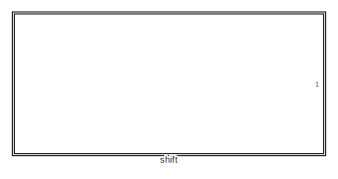
[diagram: root canvas - part 1/2, top right region]
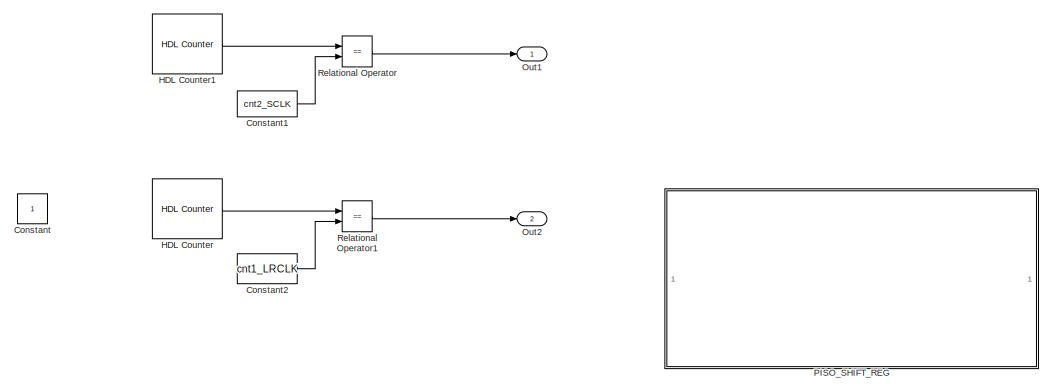
[diagram: root canvas - part 2/2, bottom left region]
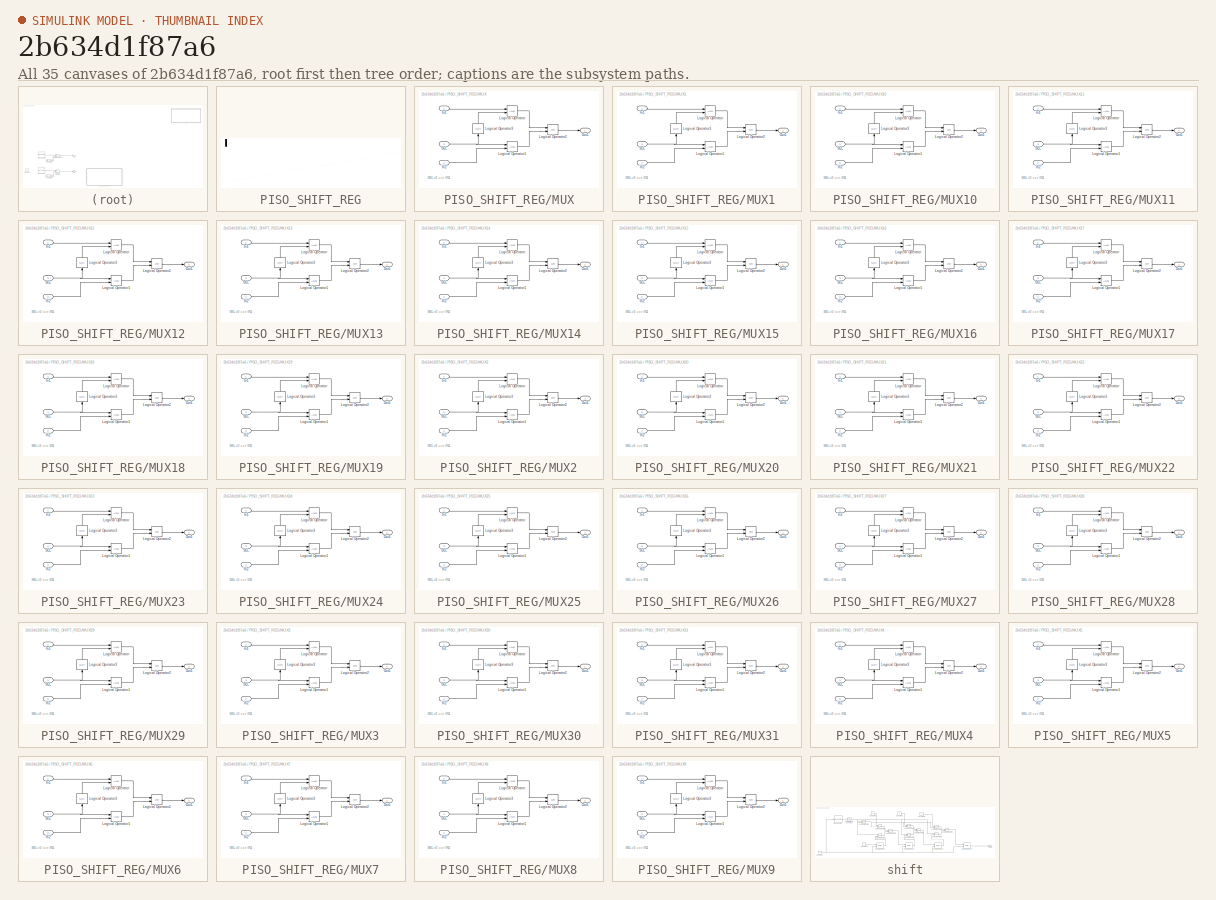
[diagram: thumbnail index - all 35 canvases of the model, root first then tree order]
MODEL slx_2b634d1f87a6
KIND model
CONFIG AbsTol = auto
CONFIG EnableMultiTasking = off
CONFIG FixedStep = auto
CONFIG MaxStep = auto
CONFIG MinStep = auto
CONFIG RelTol = 1e-3
CONFIG SampleTimeConstraint = Unconstrained
CONFIG SolverName = VariableStepAuto
CONFIG StartTime = 0.0
CONFIG StopTime = 1
BLOCK [Constant] Constant
  OutDataTypeStr = boolean
  SampleTime = 1
BLOCK [Constant] Constant1
  Value = cnt2_SCLK
BLOCK [Constant] Constant2
  Value = cnt1_LRCLK
BLOCK [Reference] HDL Counter  REF=hdlsllib/Sources/HDL Counter
  Ports = [1, 1]
  SourceBlock = hdlsllib/Sources/HDL Counter
  SourceProductBaseCode = SL
  SourceType = HDL Counter
BLOCK [Reference] HDL Counter1  REF=hdlsllib/Sources/HDL Counter
  Ports = [1, 1]
  SourceBlock = hdlsllib/Sources/HDL Counter
  SourceProductBaseCode = SL
  SourceType = HDL Counter
BLOCK [Outport] Out1
  VectorParamsAs1DForOutWhenUnconnected = off
BLOCK [Outport] Out2
  Port = 2
  VectorParamsAs1DForOutWhenUnconnected = off
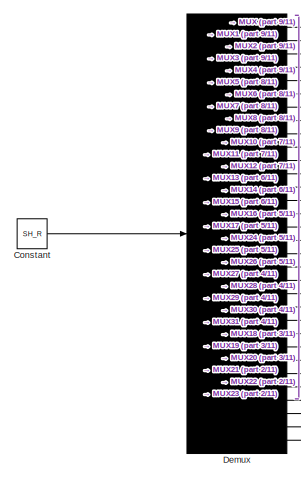
[diagram: PISO_SHIFT_REG - part 1/11, top left region]
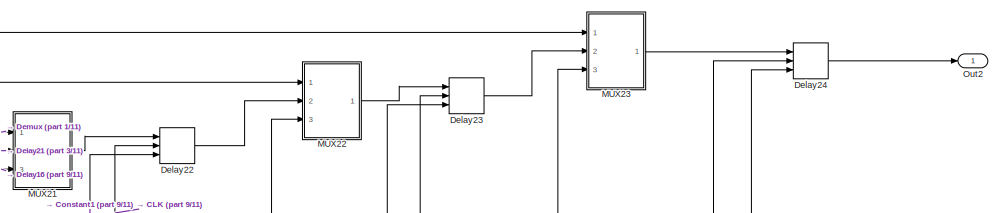
[diagram: PISO_SHIFT_REG - part 2/11, top right region]
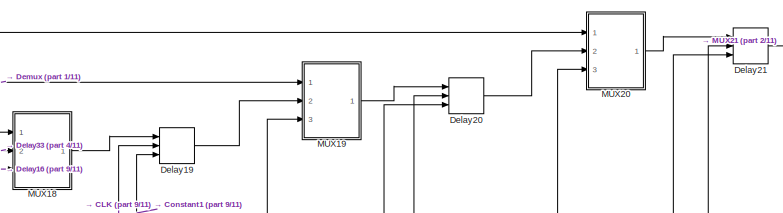
[diagram: PISO_SHIFT_REG - part 3/11, middle right region]
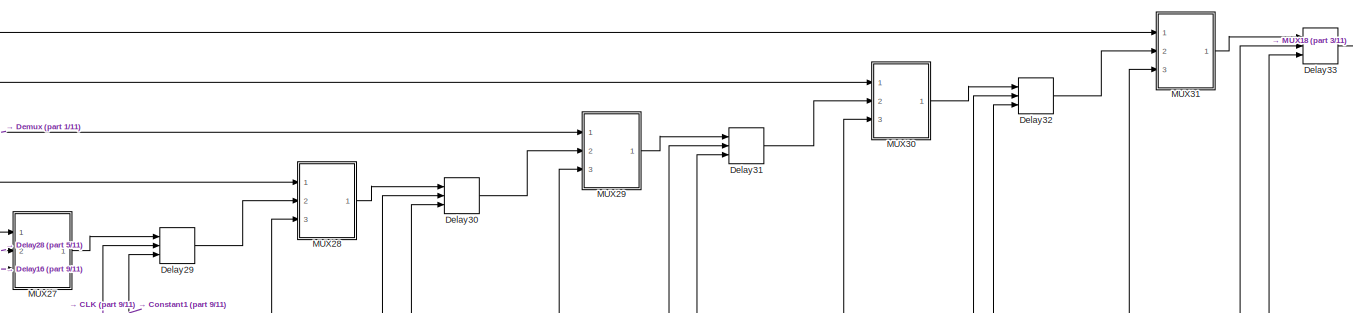
[diagram: PISO_SHIFT_REG - part 4/11, middle right region]
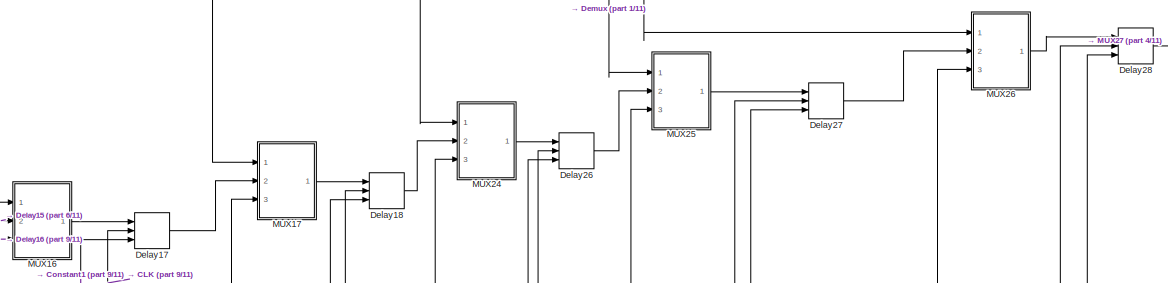
[diagram: PISO_SHIFT_REG - part 5/11, central region]
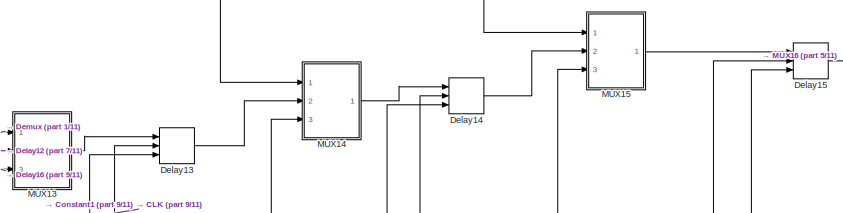
[diagram: PISO_SHIFT_REG - part 6/11, central region]
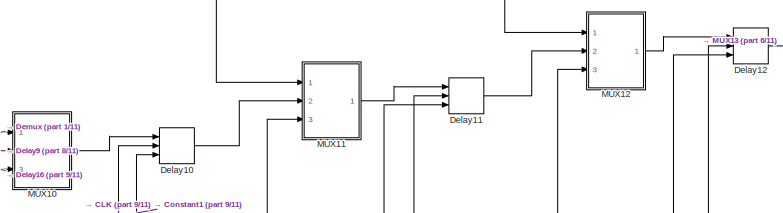
[diagram: PISO_SHIFT_REG - part 7/11, central region]
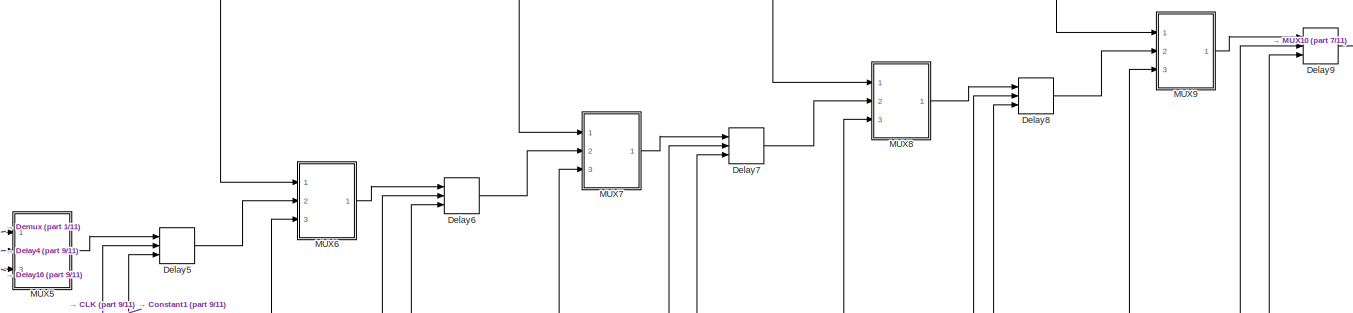
[diagram: PISO_SHIFT_REG - part 8/11, bottom left region]
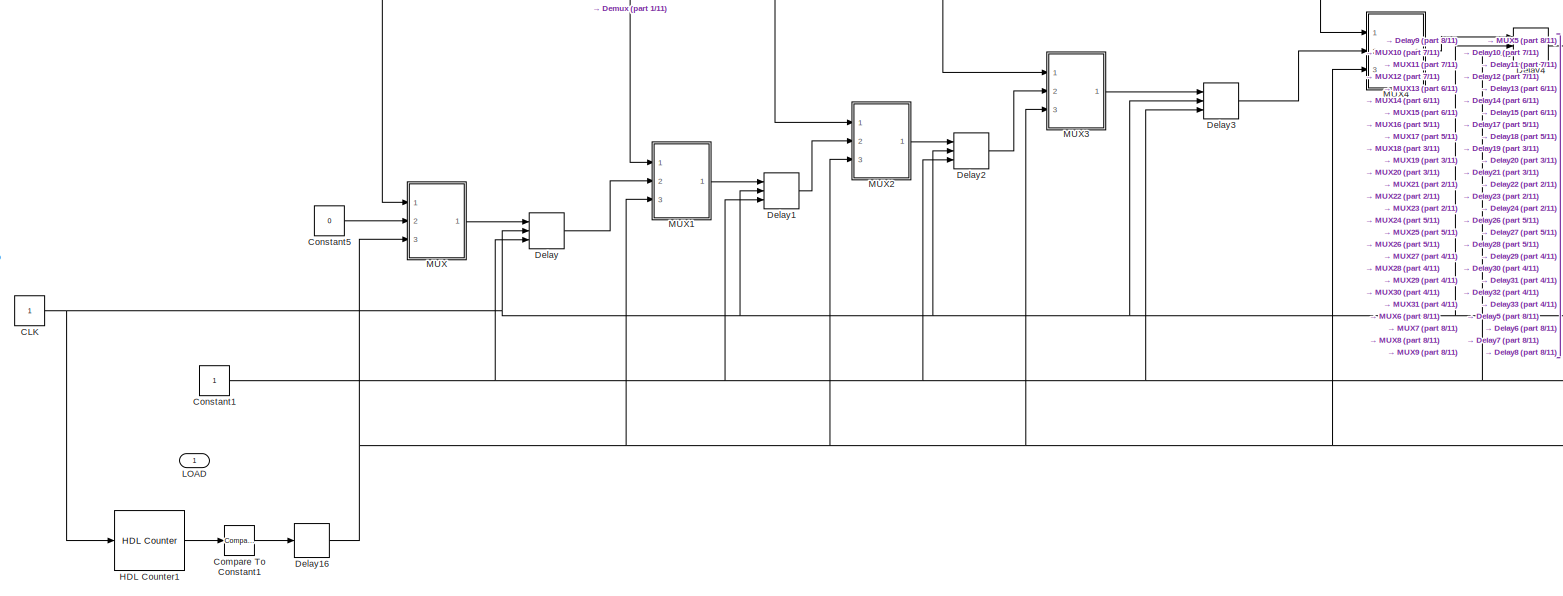
[diagram: PISO_SHIFT_REG - part 9/11, bottom left region]
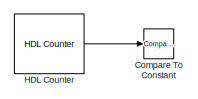
[diagram: PISO_SHIFT_REG - part 10/11, bottom left region]
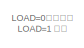
[diagram: PISO_SHIFT_REG - part 11/11, bottom left region]
BLOCK [SubSystem] PISO_SHIFT_REG
  Ports = [1, 1]
  RequestExecContextInheritance = off
BLOCK [Constant] PISO_SHIFT_REG/CLK
  OutDataTypeStr = boolean
  SampleTime = 1/1000
BLOCK [Reference] PISO_SHIFT_REG/Compare To Constant  REF=hdlsllib/Logic and Bit
Operations/Compare
To Constant
  Ports = [1, 1]
  SourceBlock = hdlsllib/Logic and Bit\nOperations/Compare\nTo Constant
  SourceProductBaseCode = SL
  SourceType = Compare To Constant
BLOCK [Reference] PISO_SHIFT_REG/Compare To Constant1  REF=hdlsllib/Logic and Bit
Operations/Compare
To Constant
  Ports = [1, 1]
  SourceBlock = hdlsllib/Logic and Bit\nOperations/Compare\nTo Constant
  SourceProductBaseCode = SL
  SourceType = Compare To Constant
BLOCK [Constant] PISO_SHIFT_REG/Constant
  SampleTime = 1/1000
  Value = SH_R
BLOCK [Constant] PISO_SHIFT_REG/Constant1
  OutDataTypeStr = boolean
BLOCK [Constant] PISO_SHIFT_REG/Constant5
  OutDataTypeStr = boolean
  SampleTime = 1
  Value = 0
BLOCK [Delay] PISO_SHIFT_REG/Delay
  DelayLength = 1
  ExternalReset = Either
  InputPortMap = u0,e6,r5
  Ports = [3, 1]
  ShowEnablePort = on
BLOCK [Delay] PISO_SHIFT_REG/Delay1
  DelayLength = 1
  ExternalReset = Either
  InputPortMap = u0,e6,r5
  Ports = [3, 1]
  ShowEnablePort = on
BLOCK [Delay] PISO_SHIFT_REG/Delay10
  DelayLength = 1
  ExternalReset = Either
  InputPortMap = u0,e6,r5
  Ports = [3, 1]
  ShowEnablePort = on
BLOCK [Delay] PISO_SHIFT_REG/Delay11
  DelayLength = 1
  ExternalReset = Either
  InputPortMap = u0,e6,r5
  Ports = [3, 1]
  ShowEnablePort = on
BLOCK [Delay] PISO_SHIFT_REG/Delay12
  DelayLength = 1
  ExternalReset = Either
  InputPortMap = u0,e6,r5
  Ports = [3, 1]
  ShowEnablePort = on
BLOCK [Delay] PISO_SHIFT_REG/Delay13
  DelayLength = 1
  ExternalReset = Either
  InputPortMap = u0,e6,r5
  Ports = [3, 1]
  ShowEnablePort = on
BLOCK [Delay] PISO_SHIFT_REG/Delay14
  DelayLength = 1
  ExternalReset = Either
  InputPortMap = u0,e6,r5
  Ports = [3, 1]
  ShowEnablePort = on
BLOCK [Delay] PISO_SHIFT_REG/Delay15
  DelayLength = 1
  ExternalReset = Either
  InputPortMap = u0,e6,r5
  Ports = [3, 1]
  ShowEnablePort = on
BLOCK [Delay] PISO_SHIFT_REG/Delay16
  DelayLength = 1
  InitialCondition = 0
  InputPortMap = u0
  Ports = [1, 1]
BLOCK [Delay] PISO_SHIFT_REG/Delay17
  DelayLength = 1
  ExternalReset = Either
  InputPortMap = u0,e6,r5
  Ports = [3, 1]
  ShowEnablePort = on
BLOCK [Delay] PISO_SHIFT_REG/Delay18
  DelayLength = 1
  ExternalReset = Either
  InputPortMap = u0,e6,r5
  Ports = [3, 1]
  ShowEnablePort = on
BLOCK [Delay] PISO_SHIFT_REG/Delay19
  DelayLength = 1
  ExternalReset = Either
  InputPortMap = u0,e6,r5
  Ports = [3, 1]
  ShowEnablePort = on
BLOCK [Delay] PISO_SHIFT_REG/Delay2
  DelayLength = 1
  ExternalReset = Either
  InputPortMap = u0,e6,r5
  Ports = [3, 1]
  ShowEnablePort = on
BLOCK [Delay] PISO_SHIFT_REG/Delay20
  DelayLength = 1
  ExternalReset = Either
  InputPortMap = u0,e6,r5
  Ports = [3, 1]
  ShowEnablePort = on
BLOCK [Delay] PISO_SHIFT_REG/Delay21
  DelayLength = 1
  ExternalReset = Either
  InputPortMap = u0,e6,r5
  Ports = [3, 1]
  ShowEnablePort = on
BLOCK [Delay] PISO_SHIFT_REG/Delay22
  DelayLength = 1
  ExternalReset = Either
  InputPortMap = u0,e6,r5
  Ports = [3, 1]
  ShowEnablePort = on
BLOCK [Delay] PISO_SHIFT_REG/Delay23
  DelayLength = 1
  ExternalReset = Either
  InputPortMap = u0,e6,r5
  Ports = [3, 1]
  ShowEnablePort = on
BLOCK [Delay] PISO_SHIFT_REG/Delay24
  DelayLength = 1
  ExternalReset = Either
  InputPortMap = u0,e6,r5
  Ports = [3, 1]
  ShowEnablePort = on
BLOCK [Delay] PISO_SHIFT_REG/Delay26
  DelayLength = 1
  ExternalReset = Either
  InputPortMap = u0,e6,r5
  Ports = [3, 1]
  ShowEnablePort = on
BLOCK [Delay] PISO_SHIFT_REG/Delay27
  DelayLength = 1
  ExternalReset = Either
  InputPortMap = u0,e6,r5
  Ports = [3, 1]
  ShowEnablePort = on
BLOCK [Delay] PISO_SHIFT_REG/Delay28
  DelayLength = 1
  ExternalReset = Either
  InputPortMap = u0,e6,r5
  Ports = [3, 1]
  ShowEnablePort = on
BLOCK [Delay] PISO_SHIFT_REG/Delay29
  DelayLength = 1
  ExternalReset = Either
  InputPortMap = u0,e6,r5
  Ports = [3, 1]
  ShowEnablePort = on
BLOCK [Delay] PISO_SHIFT_REG/Delay3
  DelayLength = 1
  ExternalReset = Either
  InputPortMap = u0,e6,r5
  Ports = [3, 1]
  ShowEnablePort = on
BLOCK [Delay] PISO_SHIFT_REG/Delay30
  DelayLength = 1
  ExternalReset = Either
  InputPortMap = u0,e6,r5
  Ports = [3, 1]
  ShowEnablePort = on
BLOCK [Delay] PISO_SHIFT_REG/Delay31
  DelayLength = 1
  ExternalReset = Either
  InputPortMap = u0,e6,r5
  Ports = [3, 1]
  ShowEnablePort = on
BLOCK [Delay] PISO_SHIFT_REG/Delay32
  DelayLength = 1
  ExternalReset = Either
  InputPortMap = u0,e6,r5
  Ports = [3, 1]
  ShowEnablePort = on
BLOCK [Delay] PISO_SHIFT_REG/Delay33
  DelayLength = 1
  ExternalReset = Either
  InputPortMap = u0,e6,r5
  Ports = [3, 1]
  ShowEnablePort = on
BLOCK [Delay] PISO_SHIFT_REG/Delay4
  DelayLength = 1
  ExternalReset = Either
  InputPortMap = u0,e6,r5
  Ports = [3, 1]
  ShowEnablePort = on
BLOCK [Delay] PISO_SHIFT_REG/Delay5
  DelayLength = 1
  ExternalReset = Either
  InputPortMap = u0,e6,r5
  Ports = [3, 1]
  ShowEnablePort = on
BLOCK [Delay] PISO_SHIFT_REG/Delay6
  DelayLength = 1
  ExternalReset = Either
  InputPortMap = u0,e6,r5
  Ports = [3, 1]
  ShowEnablePort = on
BLOCK [Delay] PISO_SHIFT_REG/Delay7
  DelayLength = 1
  ExternalReset = Either
  InputPortMap = u0,e6,r5
  Ports = [3, 1]
  ShowEnablePort = on
BLOCK [Delay] PISO_SHIFT_REG/Delay8
  DelayLength = 1
  ExternalReset = Either
  InputPortMap = u0,e6,r5
  Ports = [3, 1]
  ShowEnablePort = on
BLOCK [Delay] PISO_SHIFT_REG/Delay9
  DelayLength = 1
  ExternalReset = Either
  InputPortMap = u0,e6,r5
  Ports = [3, 1]
  ShowEnablePort = on
BLOCK [Demux] PISO_SHIFT_REG/Demux
  DisplayOption = none
  Outputs = 32
  Ports = [1, 32]
BLOCK [Reference] PISO_SHIFT_REG/HDL Counter  REF=hdlsllib/Sources/HDL Counter
  Ports = [0, 1]
  SourceBlock = hdlsllib/Sources/HDL Counter
  SourceProductBaseCode = SL
  SourceType = HDL Counter
BLOCK [Reference] PISO_SHIFT_REG/HDL Counter1  REF=hdlsllib/Sources/HDL Counter
  Ports = [1, 1]
  SourceBlock = hdlsllib/Sources/HDL Counter
  SourceProductBaseCode = SL
  SourceType = HDL Counter
BLOCK [Inport] PISO_SHIFT_REG/LOAD
BLOCK [SubSystem] PISO_SHIFT_REG/MUX
  Ports = [3, 1]
  RequestExecContextInheritance = off
BLOCK [Inport] PISO_SHIFT_REG/MUX/In1
BLOCK [Inport] PISO_SHIFT_REG/MUX/In2
  Port = 2
BLOCK [Logic] PISO_SHIFT_REG/MUX/Logical Operator
  AllPortsSameDT = off
  OutDataTypeStr = boolean
  Ports = [2, 1]
BLOCK [Logic] PISO_SHIFT_REG/MUX/Logical Operator1
  AllPortsSameDT = off
  OutDataTypeStr = boolean
  Ports = [2, 1]
BLOCK [Logic] PISO_SHIFT_REG/MUX/Logical Operator2
  AllPortsSameDT = off
  Operator = OR
  OutDataTypeStr = boolean
  Ports = [2, 1]
BLOCK [Logic] PISO_SHIFT_REG/MUX/Logical Operator3
  AllPortsSameDT = off
  NameLocation = right
  Operator = NOT
  OutDataTypeStr = boolean
  Ports = [1, 1]
BLOCK [Outport] PISO_SHIFT_REG/MUX/Out1
  VectorParamsAs1DForOutWhenUnconnected = off
BLOCK [Inport] PISO_SHIFT_REG/MUX/SEL
  OutDataTypeStr = boolean
  Port = 3
BLOCK [SubSystem] PISO_SHIFT_REG/MUX1
  Ports = [3, 1]
  RequestExecContextInheritance = off
BLOCK [Inport] PISO_SHIFT_REG/MUX1/In1
BLOCK [Inport] PISO_SHIFT_REG/MUX1/In2
  Port = 2
BLOCK [Logic] PISO_SHIFT_REG/MUX1/Logical Operator
  AllPortsSameDT = off
  OutDataTypeStr = boolean
  Ports = [2, 1]
BLOCK [Logic] PISO_SHIFT_REG/MUX1/Logical Operator1
  AllPortsSameDT = off
  OutDataTypeStr = boolean
  Ports = [2, 1]
BLOCK [Logic] PISO_SHIFT_REG/MUX1/Logical Operator2
  AllPortsSameDT = off
  Operator = OR
  OutDataTypeStr = boolean
  Ports = [2, 1]
BLOCK [Logic] PISO_SHIFT_REG/MUX1/Logical Operator3
  AllPortsSameDT = off
  NameLocation = right
  Operator = NOT
  OutDataTypeStr = boolean
  Ports = [1, 1]
BLOCK [Outport] PISO_SHIFT_REG/MUX1/Out1
  VectorParamsAs1DForOutWhenUnconnected = off
BLOCK [Inport] PISO_SHIFT_REG/MUX1/SEL
  OutDataTypeStr = boolean
  Port = 3
BLOCK [SubSystem] PISO_SHIFT_REG/MUX10
  Ports = [3, 1]
  RequestExecContextInheritance = off
BLOCK [Inport] PISO_SHIFT_REG/MUX10/In1
BLOCK [Inport] PISO_SHIFT_REG/MUX10/In2
  Port = 2
BLOCK [Logic] PISO_SHIFT_REG/MUX10/Logical Operator
  AllPortsSameDT = off
  OutDataTypeStr = boolean
  Ports = [2, 1]
BLOCK [Logic] PISO_SHIFT_REG/MUX10/Logical Operator1
  AllPortsSameDT = off
  OutDataTypeStr = boolean
  Ports = [2, 1]
BLOCK [Logic] PISO_SHIFT_REG/MUX10/Logical Operator2
  AllPortsSameDT = off
  Operator = OR
  OutDataTypeStr = boolean
  Ports = [2, 1]
BLOCK [Logic] PISO_SHIFT_REG/MUX10/Logical Operator3
  AllPortsSameDT = off
  NameLocation = right
  Operator = NOT
  OutDataTypeStr = boolean
  Ports = [1, 1]
BLOCK [Outport] PISO_SHIFT_REG/MUX10/Out1
  VectorParamsAs1DForOutWhenUnconnected = off
BLOCK [Inport] PISO_SHIFT_REG/MUX10/SEL
  OutDataTypeStr = boolean
  Port = 3
BLOCK [SubSystem] PISO_SHIFT_REG/MUX11
  Ports = [3, 1]
  RequestExecContextInheritance = off
BLOCK [Inport] PISO_SHIFT_REG/MUX11/In1
BLOCK [Inport] PISO_SHIFT_REG/MUX11/In2
  Port = 2
BLOCK [Logic] PISO_SHIFT_REG/MUX11/Logical Operator
  AllPortsSameDT = off
  OutDataTypeStr = boolean
  Ports = [2, 1]
BLOCK [Logic] PISO_SHIFT_REG/MUX11/Logical Operator1
  AllPortsSameDT = off
  OutDataTypeStr = boolean
  Ports = [2, 1]
BLOCK [Logic] PISO_SHIFT_REG/MUX11/Logical Operator2
  AllPortsSameDT = off
  Operator = OR
  OutDataTypeStr = boolean
  Ports = [2, 1]
BLOCK [Logic] PISO_SHIFT_REG/MUX11/Logical Operator3
  AllPortsSameDT = off
  NameLocation = right
  Operator = NOT
  OutDataTypeStr = boolean
  Ports = [1, 1]
BLOCK [Outport] PISO_SHIFT_REG/MUX11/Out1
  VectorParamsAs1DForOutWhenUnconnected = off
BLOCK [Inport] PISO_SHIFT_REG/MUX11/SEL
  OutDataTypeStr = boolean
  Port = 3
BLOCK [SubSystem] PISO_SHIFT_REG/MUX12
  Ports = [3, 1]
  RequestExecContextInheritance = off
BLOCK [Inport] PISO_SHIFT_REG/MUX12/In1
BLOCK [Inport] PISO_SHIFT_REG/MUX12/In2
  Port = 2
BLOCK [Logic] PISO_SHIFT_REG/MUX12/Logical Operator
  AllPortsSameDT = off
  OutDataTypeStr = boolean
  Ports = [2, 1]
BLOCK [Logic] PISO_SHIFT_REG/MUX12/Logical Operator1
  AllPortsSameDT = off
  OutDataTypeStr = boolean
  Ports = [2, 1]
BLOCK [Logic] PISO_SHIFT_REG/MUX12/Logical Operator2
  AllPortsSameDT = off
  Operator = OR
  OutDataTypeStr = boolean
  Ports = [2, 1]
BLOCK [Logic] PISO_SHIFT_REG/MUX12/Logical Operator3
  AllPortsSameDT = off
  NameLocation = right
  Operator = NOT
  OutDataTypeStr = boolean
  Ports = [1, 1]
BLOCK [Outport] PISO_SHIFT_REG/MUX12/Out1
  VectorParamsAs1DForOutWhenUnconnected = off
BLOCK [Inport] PISO_SHIFT_REG/MUX12/SEL
  OutDataTypeStr = boolean
  Port = 3
BLOCK [SubSystem] PISO_SHIFT_REG/MUX13
  Ports = [3, 1]
  RequestExecContextInheritance = off
BLOCK [Inport] PISO_SHIFT_REG/MUX13/In1
BLOCK [Inport] PISO_SHIFT_REG/MUX13/In2
  Port = 2
BLOCK [Logic] PISO_SHIFT_REG/MUX13/Logical Operator
  AllPortsSameDT = off
  OutDataTypeStr = boolean
  Ports = [2, 1]
BLOCK [Logic] PISO_SHIFT_REG/MUX13/Logical Operator1
  AllPortsSameDT = off
  OutDataTypeStr = boolean
  Ports = [2, 1]
BLOCK [Logic] PISO_SHIFT_REG/MUX13/Logical Operator2
  AllPortsSameDT = off
  Operator = OR
  OutDataTypeStr = boolean
  Ports = [2, 1]
BLOCK [Logic] PISO_SHIFT_REG/MUX13/Logical Operator3
  AllPortsSameDT = off
  NameLocation = right
  Operator = NOT
  OutDataTypeStr = boolean
  Ports = [1, 1]
BLOCK [Outport] PISO_SHIFT_REG/MUX13/Out1
  VectorParamsAs1DForOutWhenUnconnected = off
BLOCK [Inport] PISO_SHIFT_REG/MUX13/SEL
  OutDataTypeStr = boolean
  Port = 3
BLOCK [SubSystem] PISO_SHIFT_REG/MUX14
  Ports = [3, 1]
  RequestExecContextInheritance = off
BLOCK [Inport] PISO_SHIFT_REG/MUX14/In1
BLOCK [Inport] PISO_SHIFT_REG/MUX14/In2
  Port = 2
BLOCK [Logic] PISO_SHIFT_REG/MUX14/Logical Operator
  AllPortsSameDT = off
  OutDataTypeStr = boolean
  Ports = [2, 1]
BLOCK [Logic] PISO_SHIFT_REG/MUX14/Logical Operator1
  AllPortsSameDT = off
  OutDataTypeStr = boolean
  Ports = [2, 1]
BLOCK [Logic] PISO_SHIFT_REG/MUX14/Logical Operator2
  AllPortsSameDT = off
  Operator = OR
  OutDataTypeStr = boolean
  Ports = [2, 1]
BLOCK [Logic] PISO_SHIFT_REG/MUX14/Logical Operator3
  AllPortsSameDT = off
  NameLocation = right
  Operator = NOT
  OutDataTypeStr = boolean
  Ports = [1, 1]
BLOCK [Outport] PISO_SHIFT_REG/MUX14/Out1
  VectorParamsAs1DForOutWhenUnconnected = off
BLOCK [Inport] PISO_SHIFT_REG/MUX14/SEL
  OutDataTypeStr = boolean
  Port = 3
BLOCK [SubSystem] PISO_SHIFT_REG/MUX15
  Ports = [3, 1]
  RequestExecContextInheritance = off
BLOCK [Inport] PISO_SHIFT_REG/MUX15/In1
BLOCK [Inport] PISO_SHIFT_REG/MUX15/In2
  Port = 2
BLOCK [Logic] PISO_SHIFT_REG/MUX15/Logical Operator
  AllPortsSameDT = off
  OutDataTypeStr = boolean
  Ports = [2, 1]
BLOCK [Logic] PISO_SHIFT_REG/MUX15/Logical Operator1
  AllPortsSameDT = off
  OutDataTypeStr = boolean
  Ports = [2, 1]
BLOCK [Logic] PISO_SHIFT_REG/MUX15/Logical Operator2
  AllPortsSameDT = off
  Operator = OR
  OutDataTypeStr = boolean
  Ports = [2, 1]
BLOCK [Logic] PISO_SHIFT_REG/MUX15/Logical Operator3
  AllPortsSameDT = off
  NameLocation = right
  Operator = NOT
  OutDataTypeStr = boolean
  Ports = [1, 1]
BLOCK [Outport] PISO_SHIFT_REG/MUX15/Out1
  VectorParamsAs1DForOutWhenUnconnected = off
BLOCK [Inport] PISO_SHIFT_REG/MUX15/SEL
  OutDataTypeStr = boolean
  Port = 3
BLOCK [SubSystem] PISO_SHIFT_REG/MUX16
  Ports = [3, 1]
  RequestExecContextInheritance = off
BLOCK [Inport] PISO_SHIFT_REG/MUX16/In1
BLOCK [Inport] PISO_SHIFT_REG/MUX16/In2
  Port = 2
BLOCK [Logic] PISO_SHIFT_REG/MUX16/Logical Operator
  AllPortsSameDT = off
  OutDataTypeStr = boolean
  Ports = [2, 1]
BLOCK [Logic] PISO_SHIFT_REG/MUX16/Logical Operator1
  AllPortsSameDT = off
  OutDataTypeStr = boolean
  Ports = [2, 1]
BLOCK [Logic] PISO_SHIFT_REG/MUX16/Logical Operator2
  AllPortsSameDT = off
  Operator = OR
  OutDataTypeStr = boolean
  Ports = [2, 1]
BLOCK [Logic] PISO_SHIFT_REG/MUX16/Logical Operator3
  AllPortsSameDT = off
  NameLocation = right
  Operator = NOT
  OutDataTypeStr = boolean
  Ports = [1, 1]
BLOCK [Outport] PISO_SHIFT_REG/MUX16/Out1
  VectorParamsAs1DForOutWhenUnconnected = off
BLOCK [Inport] PISO_SHIFT_REG/MUX16/SEL
  OutDataTypeStr = boolean
  Port = 3
BLOCK [SubSystem] PISO_SHIFT_REG/MUX17
  Ports = [3, 1]
  RequestExecContextInheritance = off
BLOCK [Inport] PISO_SHIFT_REG/MUX17/In1
BLOCK [Inport] PISO_SHIFT_REG/MUX17/In2
  Port = 2
BLOCK [Logic] PISO_SHIFT_REG/MUX17/Logical Operator
  AllPortsSameDT = off
  OutDataTypeStr = boolean
  Ports = [2, 1]
BLOCK [Logic] PISO_SHIFT_REG/MUX17/Logical Operator1
  AllPortsSameDT = off
  OutDataTypeStr = boolean
  Ports = [2, 1]
BLOCK [Logic] PISO_SHIFT_REG/MUX17/Logical Operator2
  AllPortsSameDT = off
  Operator = OR
  OutDataTypeStr = boolean
  Ports = [2, 1]
BLOCK [Logic] PISO_SHIFT_REG/MUX17/Logical Operator3
  AllPortsSameDT = off
  NameLocation = right
  Operator = NOT
  OutDataTypeStr = boolean
  Ports = [1, 1]
BLOCK [Outport] PISO_SHIFT_REG/MUX17/Out1
  VectorParamsAs1DForOutWhenUnconnected = off
BLOCK [Inport] PISO_SHIFT_REG/MUX17/SEL
  OutDataTypeStr = boolean
  Port = 3
BLOCK [SubSystem] PISO_SHIFT_REG/MUX18
  Ports = [3, 1]
  RequestExecContextInheritance = off
BLOCK [Inport] PISO_SHIFT_REG/MUX18/In1
BLOCK [Inport] PISO_SHIFT_REG/MUX18/In2
  Port = 2
BLOCK [Logic] PISO_SHIFT_REG/MUX18/Logical Operator
  AllPortsSameDT = off
  OutDataTypeStr = boolean
  Ports = [2, 1]
BLOCK [Logic] PISO_SHIFT_REG/MUX18/Logical Operator1
  AllPortsSameDT = off
  OutDataTypeStr = boolean
  Ports = [2, 1]
BLOCK [Logic] PISO_SHIFT_REG/MUX18/Logical Operator2
  AllPortsSameDT = off
  Operator = OR
  OutDataTypeStr = boolean
  Ports = [2, 1]
BLOCK [Logic] PISO_SHIFT_REG/MUX18/Logical Operator3
  AllPortsSameDT = off
  NameLocation = right
  Operator = NOT
  OutDataTypeStr = boolean
  Ports = [1, 1]
BLOCK [Outport] PISO_SHIFT_REG/MUX18/Out1
  VectorParamsAs1DForOutWhenUnconnected = off
BLOCK [Inport] PISO_SHIFT_REG/MUX18/SEL
  OutDataTypeStr = boolean
  Port = 3
BLOCK [SubSystem] PISO_SHIFT_REG/MUX19
  Ports = [3, 1]
  RequestExecContextInheritance = off
BLOCK [Inport] PISO_SHIFT_REG/MUX19/In1
BLOCK [Inport] PISO_SHIFT_REG/MUX19/In2
  Port = 2
BLOCK [Logic] PISO_SHIFT_REG/MUX19/Logical Operator
  AllPortsSameDT = off
  OutDataTypeStr = boolean
  Ports = [2, 1]
BLOCK [Logic] PISO_SHIFT_REG/MUX19/Logical Operator1
  AllPortsSameDT = off
  OutDataTypeStr = boolean
  Ports = [2, 1]
BLOCK [Logic] PISO_SHIFT_REG/MUX19/Logical Operator2
  AllPortsSameDT = off
  Operator = OR
  OutDataTypeStr = boolean
  Ports = [2, 1]
BLOCK [Logic] PISO_SHIFT_REG/MUX19/Logical Operator3
  AllPortsSameDT = off
  NameLocation = right
  Operator = NOT
  OutDataTypeStr = boolean
  Ports = [1, 1]
BLOCK [Outport] PISO_SHIFT_REG/MUX19/Out1
  VectorParamsAs1DForOutWhenUnconnected = off
BLOCK [Inport] PISO_SHIFT_REG/MUX19/SEL
  OutDataTypeStr = boolean
  Port = 3
BLOCK [SubSystem] PISO_SHIFT_REG/MUX2
  Ports = [3, 1]
  RequestExecContextInheritance = off
BLOCK [Inport] PISO_SHIFT_REG/MUX2/In1
BLOCK [Inport] PISO_SHIFT_REG/MUX2/In2
  Port = 2
BLOCK [Logic] PISO_SHIFT_REG/MUX2/Logical Operator
  AllPortsSameDT = off
  OutDataTypeStr = boolean
  Ports = [2, 1]
BLOCK [Logic] PISO_SHIFT_REG/MUX2/Logical Operator1
  AllPortsSameDT = off
  OutDataTypeStr = boolean
  Ports = [2, 1]
BLOCK [Logic] PISO_SHIFT_REG/MUX2/Logical Operator2
  AllPortsSameDT = off
  Operator = OR
  OutDataTypeStr = boolean
  Ports = [2, 1]
BLOCK [Logic] PISO_SHIFT_REG/MUX2/Logical Operator3
  AllPortsSameDT = off
  NameLocation = right
  Operator = NOT
  OutDataTypeStr = boolean
  Ports = [1, 1]
BLOCK [Outport] PISO_SHIFT_REG/MUX2/Out1
  VectorParamsAs1DForOutWhenUnconnected = off
BLOCK [Inport] PISO_SHIFT_REG/MUX2/SEL
  OutDataTypeStr = boolean
  Port = 3
BLOCK [SubSystem] PISO_SHIFT_REG/MUX20
  Ports = [3, 1]
  RequestExecContextInheritance = off
BLOCK [Inport] PISO_SHIFT_REG/MUX20/In1
BLOCK [Inport] PISO_SHIFT_REG/MUX20/In2
  Port = 2
BLOCK [Logic] PISO_SHIFT_REG/MUX20/Logical Operator
  AllPortsSameDT = off
  OutDataTypeStr = boolean
  Ports = [2, 1]
BLOCK [Logic] PISO_SHIFT_REG/MUX20/Logical Operator1
  AllPortsSameDT = off
  OutDataTypeStr = boolean
  Ports = [2, 1]
BLOCK [Logic] PISO_SHIFT_REG/MUX20/Logical Operator2
  AllPortsSameDT = off
  Operator = OR
  OutDataTypeStr = boolean
  Ports = [2, 1]
BLOCK [Logic] PISO_SHIFT_REG/MUX20/Logical Operator3
  AllPortsSameDT = off
  NameLocation = right
  Operator = NOT
  OutDataTypeStr = boolean
  Ports = [1, 1]
BLOCK [Outport] PISO_SHIFT_REG/MUX20/Out1
  VectorParamsAs1DForOutWhenUnconnected = off
BLOCK [Inport] PISO_SHIFT_REG/MUX20/SEL
  OutDataTypeStr = boolean
  Port = 3
BLOCK [SubSystem] PISO_SHIFT_REG/MUX21
  Ports = [3, 1]
  RequestExecContextInheritance = off
BLOCK [Inport] PISO_SHIFT_REG/MUX21/In1
BLOCK [Inport] PISO_SHIFT_REG/MUX21/In2
  Port = 2
BLOCK [Logic] PISO_SHIFT_REG/MUX21/Logical Operator
  AllPortsSameDT = off
  OutDataTypeStr = boolean
  Ports = [2, 1]
BLOCK [Logic] PISO_SHIFT_REG/MUX21/Logical Operator1
  AllPortsSameDT = off
  OutDataTypeStr = boolean
  Ports = [2, 1]
BLOCK [Logic] PISO_SHIFT_REG/MUX21/Logical Operator2
  AllPortsSameDT = off
  Operator = OR
  OutDataTypeStr = boolean
  Ports = [2, 1]
BLOCK [Logic] PISO_SHIFT_REG/MUX21/Logical Operator3
  AllPortsSameDT = off
  NameLocation = right
  Operator = NOT
  OutDataTypeStr = boolean
  Ports = [1, 1]
BLOCK [Outport] PISO_SHIFT_REG/MUX21/Out1
  VectorParamsAs1DForOutWhenUnconnected = off
BLOCK [Inport] PISO_SHIFT_REG/MUX21/SEL
  OutDataTypeStr = boolean
  Port = 3
BLOCK [SubSystem] PISO_SHIFT_REG/MUX22
  Ports = [3, 1]
  RequestExecContextInheritance = off
BLOCK [Inport] PISO_SHIFT_REG/MUX22/In1
BLOCK [Inport] PISO_SHIFT_REG/MUX22/In2
  Port = 2
BLOCK [Logic] PISO_SHIFT_REG/MUX22/Logical Operator
  AllPortsSameDT = off
  OutDataTypeStr = boolean
  Ports = [2, 1]
BLOCK [Logic] PISO_SHIFT_REG/MUX22/Logical Operator1
  AllPortsSameDT = off
  OutDataTypeStr = boolean
  Ports = [2, 1]
BLOCK [Logic] PISO_SHIFT_REG/MUX22/Logical Operator2
  AllPortsSameDT = off
  Operator = OR
  OutDataTypeStr = boolean
  Ports = [2, 1]
BLOCK [Logic] PISO_SHIFT_REG/MUX22/Logical Operator3
  AllPortsSameDT = off
  NameLocation = right
  Operator = NOT
  OutDataTypeStr = boolean
  Ports = [1, 1]
BLOCK [Outport] PISO_SHIFT_REG/MUX22/Out1
  VectorParamsAs1DForOutWhenUnconnected = off
BLOCK [Inport] PISO_SHIFT_REG/MUX22/SEL
  OutDataTypeStr = boolean
  Port = 3
BLOCK [SubSystem] PISO_SHIFT_REG/MUX23
  Ports = [3, 1]
  RequestExecContextInheritance = off
BLOCK [Inport] PISO_SHIFT_REG/MUX23/In1
BLOCK [Inport] PISO_SHIFT_REG/MUX23/In2
  Port = 2
BLOCK [Logic] PISO_SHIFT_REG/MUX23/Logical Operator
  AllPortsSameDT = off
  OutDataTypeStr = boolean
  Ports = [2, 1]
BLOCK [Logic] PISO_SHIFT_REG/MUX23/Logical Operator1
  AllPortsSameDT = off
  OutDataTypeStr = boolean
  Ports = [2, 1]
BLOCK [Logic] PISO_SHIFT_REG/MUX23/Logical Operator2
  AllPortsSameDT = off
  Operator = OR
  OutDataTypeStr = boolean
  Ports = [2, 1]
BLOCK [Logic] PISO_SHIFT_REG/MUX23/Logical Operator3
  AllPortsSameDT = off
  NameLocation = right
  Operator = NOT
  OutDataTypeStr = boolean
  Ports = [1, 1]
BLOCK [Outport] PISO_SHIFT_REG/MUX23/Out1
  VectorParamsAs1DForOutWhenUnconnected = off
BLOCK [Inport] PISO_SHIFT_REG/MUX23/SEL
  OutDataTypeStr = boolean
  Port = 3
BLOCK [SubSystem] PISO_SHIFT_REG/MUX24
  Ports = [3, 1]
  RequestExecContextInheritance = off
BLOCK [Inport] PISO_SHIFT_REG/MUX24/In1
BLOCK [Inport] PISO_SHIFT_REG/MUX24/In2
  Port = 2
BLOCK [Logic] PISO_SHIFT_REG/MUX24/Logical Operator
  AllPortsSameDT = off
  OutDataTypeStr = boolean
  Ports = [2, 1]
BLOCK [Logic] PISO_SHIFT_REG/MUX24/Logical Operator1
  AllPortsSameDT = off
  OutDataTypeStr = boolean
  Ports = [2, 1]
BLOCK [Logic] PISO_SHIFT_REG/MUX24/Logical Operator2
  AllPortsSameDT = off
  Operator = OR
  OutDataTypeStr = boolean
  Ports = [2, 1]
BLOCK [Logic] PISO_SHIFT_REG/MUX24/Logical Operator3
  AllPortsSameDT = off
  NameLocation = right
  Operator = NOT
  OutDataTypeStr = boolean
  Ports = [1, 1]
BLOCK [Outport] PISO_SHIFT_REG/MUX24/Out1
  VectorParamsAs1DForOutWhenUnconnected = off
BLOCK [Inport] PISO_SHIFT_REG/MUX24/SEL
  OutDataTypeStr = boolean
  Port = 3
BLOCK [SubSystem] PISO_SHIFT_REG/MUX25
  Ports = [3, 1]
  RequestExecContextInheritance = off
BLOCK [Inport] PISO_SHIFT_REG/MUX25/In1
BLOCK [Inport] PISO_SHIFT_REG/MUX25/In2
  Port = 2
BLOCK [Logic] PISO_SHIFT_REG/MUX25/Logical Operator
  AllPortsSameDT = off
  OutDataTypeStr = boolean
  Ports = [2, 1]
BLOCK [Logic] PISO_SHIFT_REG/MUX25/Logical Operator1
  AllPortsSameDT = off
  OutDataTypeStr = boolean
  Ports = [2, 1]
BLOCK [Logic] PISO_SHIFT_REG/MUX25/Logical Operator2
  AllPortsSameDT = off
  Operator = OR
  OutDataTypeStr = boolean
  Ports = [2, 1]
BLOCK [Logic] PISO_SHIFT_REG/MUX25/Logical Operator3
  AllPortsSameDT = off
  NameLocation = right
  Operator = NOT
  OutDataTypeStr = boolean
  Ports = [1, 1]
BLOCK [Outport] PISO_SHIFT_REG/MUX25/Out1
  VectorParamsAs1DForOutWhenUnconnected = off
BLOCK [Inport] PISO_SHIFT_REG/MUX25/SEL
  OutDataTypeStr = boolean
  Port = 3
BLOCK [SubSystem] PISO_SHIFT_REG/MUX26
  Ports = [3, 1]
  RequestExecContextInheritance = off
BLOCK [Inport] PISO_SHIFT_REG/MUX26/In1
BLOCK [Inport] PISO_SHIFT_REG/MUX26/In2
  Port = 2
BLOCK [Logic] PISO_SHIFT_REG/MUX26/Logical Operator
  AllPortsSameDT = off
  OutDataTypeStr = boolean
  Ports = [2, 1]
BLOCK [Logic] PISO_SHIFT_REG/MUX26/Logical Operator1
  AllPortsSameDT = off
  OutDataTypeStr = boolean
  Ports = [2, 1]
BLOCK [Logic] PISO_SHIFT_REG/MUX26/Logical Operator2
  AllPortsSameDT = off
  Operator = OR
  OutDataTypeStr = boolean
  Ports = [2, 1]
BLOCK [Logic] PISO_SHIFT_REG/MUX26/Logical Operator3
  AllPortsSameDT = off
  NameLocation = right
  Operator = NOT
  OutDataTypeStr = boolean
  Ports = [1, 1]
BLOCK [Outport] PISO_SHIFT_REG/MUX26/Out1
  VectorParamsAs1DForOutWhenUnconnected = off
BLOCK [Inport] PISO_SHIFT_REG/MUX26/SEL
  OutDataTypeStr = boolean
  Port = 3
BLOCK [SubSystem] PISO_SHIFT_REG/MUX27
  Ports = [3, 1]
  RequestExecContextInheritance = off
BLOCK [Inport] PISO_SHIFT_REG/MUX27/In1
BLOCK [Inport] PISO_SHIFT_REG/MUX27/In2
  Port = 2
BLOCK [Logic] PISO_SHIFT_REG/MUX27/Logical Operator
  AllPortsSameDT = off
  OutDataTypeStr = boolean
  Ports = [2, 1]
BLOCK [Logic] PISO_SHIFT_REG/MUX27/Logical Operator1
  AllPortsSameDT = off
  OutDataTypeStr = boolean
  Ports = [2, 1]
BLOCK [Logic] PISO_SHIFT_REG/MUX27/Logical Operator2
  AllPortsSameDT = off
  Operator = OR
  OutDataTypeStr = boolean
  Ports = [2, 1]
BLOCK [Logic] PISO_SHIFT_REG/MUX27/Logical Operator3
  AllPortsSameDT = off
  NameLocation = right
  Operator = NOT
  OutDataTypeStr = boolean
  Ports = [1, 1]
BLOCK [Outport] PISO_SHIFT_REG/MUX27/Out1
  VectorParamsAs1DForOutWhenUnconnected = off
BLOCK [Inport] PISO_SHIFT_REG/MUX27/SEL
  OutDataTypeStr = boolean
  Port = 3
BLOCK [SubSystem] PISO_SHIFT_REG/MUX28
  Ports = [3, 1]
  RequestExecContextInheritance = off
BLOCK [Inport] PISO_SHIFT_REG/MUX28/In1
BLOCK [Inport] PISO_SHIFT_REG/MUX28/In2
  Port = 2
BLOCK [Logic] PISO_SHIFT_REG/MUX28/Logical Operator
  AllPortsSameDT = off
  OutDataTypeStr = boolean
  Ports = [2, 1]
BLOCK [Logic] PISO_SHIFT_REG/MUX28/Logical Operator1
  AllPortsSameDT = off
  OutDataTypeStr = boolean
  Ports = [2, 1]
BLOCK [Logic] PISO_SHIFT_REG/MUX28/Logical Operator2
  AllPortsSameDT = off
  Operator = OR
  OutDataTypeStr = boolean
  Ports = [2, 1]
BLOCK [Logic] PISO_SHIFT_REG/MUX28/Logical Operator3
  AllPortsSameDT = off
  NameLocation = right
  Operator = NOT
  OutDataTypeStr = boolean
  Ports = [1, 1]
BLOCK [Outport] PISO_SHIFT_REG/MUX28/Out1
  VectorParamsAs1DForOutWhenUnconnected = off
BLOCK [Inport] PISO_SHIFT_REG/MUX28/SEL
  OutDataTypeStr = boolean
  Port = 3
BLOCK [SubSystem] PISO_SHIFT_REG/MUX29
  Ports = [3, 1]
  RequestExecContextInheritance = off
BLOCK [Inport] PISO_SHIFT_REG/MUX29/In1
BLOCK [Inport] PISO_SHIFT_REG/MUX29/In2
  Port = 2
BLOCK [Logic] PISO_SHIFT_REG/MUX29/Logical Operator
  AllPortsSameDT = off
  OutDataTypeStr = boolean
  Ports = [2, 1]
BLOCK [Logic] PISO_SHIFT_REG/MUX29/Logical Operator1
  AllPortsSameDT = off
  OutDataTypeStr = boolean
  Ports = [2, 1]
BLOCK [Logic] PISO_SHIFT_REG/MUX29/Logical Operator2
  AllPortsSameDT = off
  Operator = OR
  OutDataTypeStr = boolean
  Ports = [2, 1]
BLOCK [Logic] PISO_SHIFT_REG/MUX29/Logical Operator3
  AllPortsSameDT = off
  NameLocation = right
  Operator = NOT
  OutDataTypeStr = boolean
  Ports = [1, 1]
BLOCK [Outport] PISO_SHIFT_REG/MUX29/Out1
  VectorParamsAs1DForOutWhenUnconnected = off
BLOCK [Inport] PISO_SHIFT_REG/MUX29/SEL
  OutDataTypeStr = boolean
  Port = 3
BLOCK [SubSystem] PISO_SHIFT_REG/MUX3
  Ports = [3, 1]
  RequestExecContextInheritance = off
BLOCK [Inport] PISO_SHIFT_REG/MUX3/In1
BLOCK [Inport] PISO_SHIFT_REG/MUX3/In2
  Port = 2
BLOCK [Logic] PISO_SHIFT_REG/MUX3/Logical Operator
  AllPortsSameDT = off
  OutDataTypeStr = boolean
  Ports = [2, 1]
BLOCK [Logic] PISO_SHIFT_REG/MUX3/Logical Operator1
  AllPortsSameDT = off
  OutDataTypeStr = boolean
  Ports = [2, 1]
BLOCK [Logic] PISO_SHIFT_REG/MUX3/Logical Operator2
  AllPortsSameDT = off
  Operator = OR
  OutDataTypeStr = boolean
  Ports = [2, 1]
BLOCK [Logic] PISO_SHIFT_REG/MUX3/Logical Operator3
  AllPortsSameDT = off
  NameLocation = right
  Operator = NOT
  OutDataTypeStr = boolean
  Ports = [1, 1]
BLOCK [Outport] PISO_SHIFT_REG/MUX3/Out1
  VectorParamsAs1DForOutWhenUnconnected = off
BLOCK [Inport] PISO_SHIFT_REG/MUX3/SEL
  OutDataTypeStr = boolean
  Port = 3
BLOCK [SubSystem] PISO_SHIFT_REG/MUX30
  Ports = [3, 1]
  RequestExecContextInheritance = off
BLOCK [Inport] PISO_SHIFT_REG/MUX30/In1
BLOCK [Inport] PISO_SHIFT_REG/MUX30/In2
  Port = 2
BLOCK [Logic] PISO_SHIFT_REG/MUX30/Logical Operator
  AllPortsSameDT = off
  OutDataTypeStr = boolean
  Ports = [2, 1]
BLOCK [Logic] PISO_SHIFT_REG/MUX30/Logical Operator1
  AllPortsSameDT = off
  OutDataTypeStr = boolean
  Ports = [2, 1]
BLOCK [Logic] PISO_SHIFT_REG/MUX30/Logical Operator2
  AllPortsSameDT = off
  Operator = OR
  OutDataTypeStr = boolean
  Ports = [2, 1]
BLOCK [Logic] PISO_SHIFT_REG/MUX30/Logical Operator3
  AllPortsSameDT = off
  NameLocation = right
  Operator = NOT
  OutDataTypeStr = boolean
  Ports = [1, 1]
BLOCK [Outport] PISO_SHIFT_REG/MUX30/Out1
  VectorParamsAs1DForOutWhenUnconnected = off
BLOCK [Inport] PISO_SHIFT_REG/MUX30/SEL
  OutDataTypeStr = boolean
  Port = 3
BLOCK [SubSystem] PISO_SHIFT_REG/MUX31
  Ports = [3, 1]
  RequestExecContextInheritance = off
BLOCK [Inport] PISO_SHIFT_REG/MUX31/In1
BLOCK [Inport] PISO_SHIFT_REG/MUX31/In2
  Port = 2
BLOCK [Logic] PISO_SHIFT_REG/MUX31/Logical Operator
  AllPortsSameDT = off
  OutDataTypeStr = boolean
  Ports = [2, 1]
BLOCK [Logic] PISO_SHIFT_REG/MUX31/Logical Operator1
  AllPortsSameDT = off
  OutDataTypeStr = boolean
  Ports = [2, 1]
BLOCK [Logic] PISO_SHIFT_REG/MUX31/Logical Operator2
  AllPortsSameDT = off
  Operator = OR
  OutDataTypeStr = boolean
  Ports = [2, 1]
BLOCK [Logic] PISO_SHIFT_REG/MUX31/Logical Operator3
  AllPortsSameDT = off
  NameLocation = right
  Operator = NOT
  OutDataTypeStr = boolean
  Ports = [1, 1]
BLOCK [Outport] PISO_SHIFT_REG/MUX31/Out1
  VectorParamsAs1DForOutWhenUnconnected = off
BLOCK [Inport] PISO_SHIFT_REG/MUX31/SEL
  OutDataTypeStr = boolean
  Port = 3
BLOCK [SubSystem] PISO_SHIFT_REG/MUX4
  Ports = [3, 1]
  RequestExecContextInheritance = off
BLOCK [Inport] PISO_SHIFT_REG/MUX4/In1
BLOCK [Inport] PISO_SHIFT_REG/MUX4/In2
  Port = 2
BLOCK [Logic] PISO_SHIFT_REG/MUX4/Logical Operator
  AllPortsSameDT = off
  OutDataTypeStr = boolean
  Ports = [2, 1]
BLOCK [Logic] PISO_SHIFT_REG/MUX4/Logical Operator1
  AllPortsSameDT = off
  OutDataTypeStr = boolean
  Ports = [2, 1]
BLOCK [Logic] PISO_SHIFT_REG/MUX4/Logical Operator2
  AllPortsSameDT = off
  Operator = OR
  OutDataTypeStr = boolean
  Ports = [2, 1]
BLOCK [Logic] PISO_SHIFT_REG/MUX4/Logical Operator3
  AllPortsSameDT = off
  NameLocation = right
  Operator = NOT
  OutDataTypeStr = boolean
  Ports = [1, 1]
BLOCK [Outport] PISO_SHIFT_REG/MUX4/Out1
  VectorParamsAs1DForOutWhenUnconnected = off
BLOCK [Inport] PISO_SHIFT_REG/MUX4/SEL
  OutDataTypeStr = boolean
  Port = 3
BLOCK [SubSystem] PISO_SHIFT_REG/MUX5
  Ports = [3, 1]
  RequestExecContextInheritance = off
BLOCK [Inport] PISO_SHIFT_REG/MUX5/In1
BLOCK [Inport] PISO_SHIFT_REG/MUX5/In2
  Port = 2
BLOCK [Logic] PISO_SHIFT_REG/MUX5/Logical Operator
  AllPortsSameDT = off
  OutDataTypeStr = boolean
  Ports = [2, 1]
BLOCK [Logic] PISO_SHIFT_REG/MUX5/Logical Operator1
  AllPortsSameDT = off
  OutDataTypeStr = boolean
  Ports = [2, 1]
BLOCK [Logic] PISO_SHIFT_REG/MUX5/Logical Operator2
  AllPortsSameDT = off
  Operator = OR
  OutDataTypeStr = boolean
  Ports = [2, 1]
BLOCK [Logic] PISO_SHIFT_REG/MUX5/Logical Operator3
  AllPortsSameDT = off
  NameLocation = right
  Operator = NOT
  OutDataTypeStr = boolean
  Ports = [1, 1]
BLOCK [Outport] PISO_SHIFT_REG/MUX5/Out1
  VectorParamsAs1DForOutWhenUnconnected = off
BLOCK [Inport] PISO_SHIFT_REG/MUX5/SEL
  OutDataTypeStr = boolean
  Port = 3
BLOCK [SubSystem] PISO_SHIFT_REG/MUX6
  Ports = [3, 1]
  RequestExecContextInheritance = off
BLOCK [Inport] PISO_SHIFT_REG/MUX6/In1
BLOCK [Inport] PISO_SHIFT_REG/MUX6/In2
  Port = 2
BLOCK [Logic] PISO_SHIFT_REG/MUX6/Logical Operator
  AllPortsSameDT = off
  OutDataTypeStr = boolean
  Ports = [2, 1]
BLOCK [Logic] PISO_SHIFT_REG/MUX6/Logical Operator1
  AllPortsSameDT = off
  OutDataTypeStr = boolean
  Ports = [2, 1]
BLOCK [Logic] PISO_SHIFT_REG/MUX6/Logical Operator2
  AllPortsSameDT = off
  Operator = OR
  OutDataTypeStr = boolean
  Ports = [2, 1]
BLOCK [Logic] PISO_SHIFT_REG/MUX6/Logical Operator3
  AllPortsSameDT = off
  NameLocation = right
  Operator = NOT
  OutDataTypeStr = boolean
  Ports = [1, 1]
BLOCK [Outport] PISO_SHIFT_REG/MUX6/Out1
  VectorParamsAs1DForOutWhenUnconnected = off
BLOCK [Inport] PISO_SHIFT_REG/MUX6/SEL
  OutDataTypeStr = boolean
  Port = 3
BLOCK [SubSystem] PISO_SHIFT_REG/MUX7
  Ports = [3, 1]
  RequestExecContextInheritance = off
BLOCK [Inport] PISO_SHIFT_REG/MUX7/In1
BLOCK [Inport] PISO_SHIFT_REG/MUX7/In2
  Port = 2
BLOCK [Logic] PISO_SHIFT_REG/MUX7/Logical Operator
  AllPortsSameDT = off
  OutDataTypeStr = boolean
  Ports = [2, 1]
BLOCK [Logic] PISO_SHIFT_REG/MUX7/Logical Operator1
  AllPortsSameDT = off
  OutDataTypeStr = boolean
  Ports = [2, 1]
BLOCK [Logic] PISO_SHIFT_REG/MUX7/Logical Operator2
  AllPortsSameDT = off
  Operator = OR
  OutDataTypeStr = boolean
  Ports = [2, 1]
BLOCK [Logic] PISO_SHIFT_REG/MUX7/Logical Operator3
  AllPortsSameDT = off
  NameLocation = right
  Operator = NOT
  OutDataTypeStr = boolean
  Ports = [1, 1]
BLOCK [Outport] PISO_SHIFT_REG/MUX7/Out1
  VectorParamsAs1DForOutWhenUnconnected = off
BLOCK [Inport] PISO_SHIFT_REG/MUX7/SEL
  OutDataTypeStr = boolean
  Port = 3
BLOCK [SubSystem] PISO_SHIFT_REG/MUX8
  Ports = [3, 1]
  RequestExecContextInheritance = off
BLOCK [Inport] PISO_SHIFT_REG/MUX8/In1
BLOCK [Inport] PISO_SHIFT_REG/MUX8/In2
  Port = 2
BLOCK [Logic] PISO_SHIFT_REG/MUX8/Logical Operator
  AllPortsSameDT = off
  OutDataTypeStr = boolean
  Ports = [2, 1]
BLOCK [Logic] PISO_SHIFT_REG/MUX8/Logical Operator1
  AllPortsSameDT = off
  OutDataTypeStr = boolean
  Ports = [2, 1]
BLOCK [Logic] PISO_SHIFT_REG/MUX8/Logical Operator2
  AllPortsSameDT = off
  Operator = OR
  OutDataTypeStr = boolean
  Ports = [2, 1]
BLOCK [Logic] PISO_SHIFT_REG/MUX8/Logical Operator3
  AllPortsSameDT = off
  NameLocation = right
  Operator = NOT
  OutDataTypeStr = boolean
  Ports = [1, 1]
BLOCK [Outport] PISO_SHIFT_REG/MUX8/Out1
  VectorParamsAs1DForOutWhenUnconnected = off
BLOCK [Inport] PISO_SHIFT_REG/MUX8/SEL
  OutDataTypeStr = boolean
  Port = 3
BLOCK [SubSystem] PISO_SHIFT_REG/MUX9
  Ports = [3, 1]
  RequestExecContextInheritance = off
BLOCK [Inport] PISO_SHIFT_REG/MUX9/In1
BLOCK [Inport] PISO_SHIFT_REG/MUX9/In2
  Port = 2
BLOCK [Logic] PISO_SHIFT_REG/MUX9/Logical Operator
  AllPortsSameDT = off
  OutDataTypeStr = boolean
  Ports = [2, 1]
BLOCK [Logic] PISO_SHIFT_REG/MUX9/Logical Operator1
  AllPortsSameDT = off
  OutDataTypeStr = boolean
  Ports = [2, 1]
BLOCK [Logic] PISO_SHIFT_REG/MUX9/Logical Operator2
  AllPortsSameDT = off
  Operator = OR
  OutDataTypeStr = boolean
  Ports = [2, 1]
BLOCK [Logic] PISO_SHIFT_REG/MUX9/Logical Operator3
  AllPortsSameDT = off
  NameLocation = right
  Operator = NOT
  OutDataTypeStr = boolean
  Ports = [1, 1]
BLOCK [Outport] PISO_SHIFT_REG/MUX9/Out1
  VectorParamsAs1DForOutWhenUnconnected = off
BLOCK [Inport] PISO_SHIFT_REG/MUX9/SEL
  OutDataTypeStr = boolean
  Port = 3
BLOCK [Outport] PISO_SHIFT_REG/Out2
  VectorParamsAs1DForOutWhenUnconnected = off
BLOCK [RelationalOperator] Relational Operator
  InputSameDT = off
  Operator = ==
  OutDataTypeStr = boolean
  Ports = [2, 1]
BLOCK [RelationalOperator] Relational Operator1
  InputSameDT = off
  Operator = ==
  OutDataTypeStr = boolean
  Ports = [2, 1]
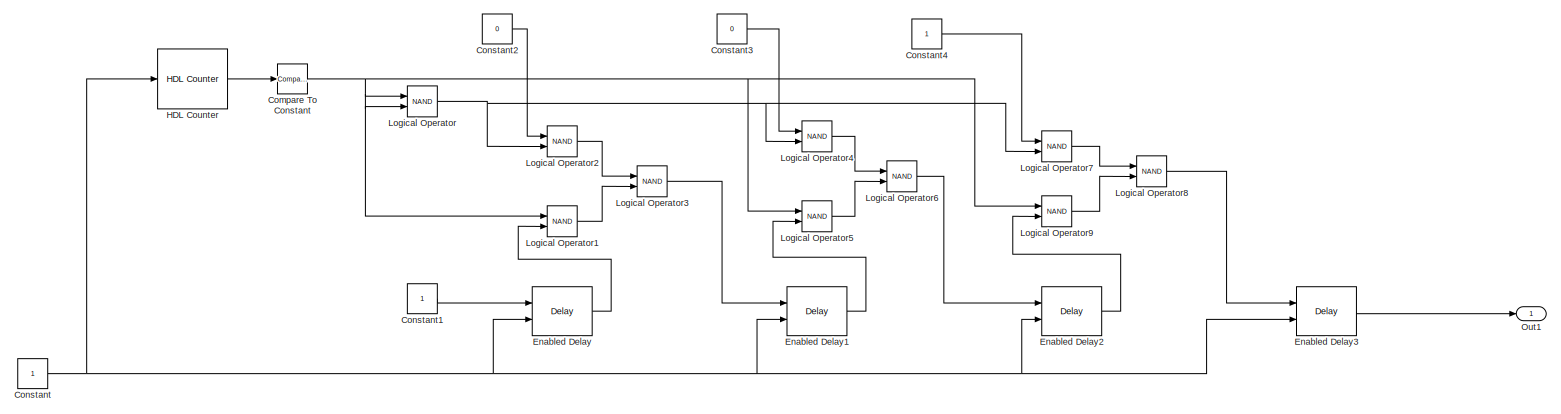
[diagram: shift - part 1/1, most of the canvas]
BLOCK [SubSystem] shift
  Ports = [0, 1]
  RequestExecContextInheritance = off
BLOCK [Reference] shift/Compare To Constant  REF=hdlsllib/Logic and Bit
Operations/Compare
To Constant
  Ports = [1, 1]
  SourceBlock = hdlsllib/Logic and Bit\nOperations/Compare\nTo Constant
  SourceProductBaseCode = SL
  SourceType = Compare To Constant
BLOCK [Constant] shift/Constant
  OutDataTypeStr = boolean
  SampleTime = 1
BLOCK [Constant] shift/Constant1
  OutDataTypeStr = boolean
  SampleTime = 1
BLOCK [Constant] shift/Constant2
  OutDataTypeStr = boolean
  SampleTime = 1
  Value = 0
BLOCK [Constant] shift/Constant3
  OutDataTypeStr = boolean
  SampleTime = 1
  Value = 0
BLOCK [Constant] shift/Constant4
  OutDataTypeStr = boolean
  SampleTime = 1
BLOCK [Delay] shift/Enabled Delay
  DelayLength = 1
  InputPortMap = u0,e6
  Ports = [2, 1]
  ShowEnablePort = on
BLOCK [Delay] shift/Enabled Delay1
  DelayLength = 1
  InputPortMap = u0,e6
  Ports = [2, 1]
  ShowEnablePort = on
BLOCK [Delay] shift/Enabled Delay2
  DelayLength = 1
  InputPortMap = u0,e6
  Ports = [2, 1]
  ShowEnablePort = on
BLOCK [Delay] shift/Enabled Delay3
  DelayLength = 1
  InputPortMap = u0,e6
  Ports = [2, 1]
  ShowEnablePort = on
BLOCK [Reference] shift/HDL Counter  REF=hdlsllib/Sources/HDL Counter
  Ports = [1, 1]
  SourceBlock = hdlsllib/Sources/HDL Counter
  SourceProductBaseCode = SL
  SourceType = HDL Counter
BLOCK [Logic] shift/Logical Operator
  AllPortsSameDT = off
  Operator = NAND
  OutDataTypeStr = boolean
  Ports = [2, 1]
BLOCK [Logic] shift/Logical Operator1
  AllPortsSameDT = off
  Operator = NAND
  OutDataTypeStr = boolean
  Ports = [2, 1]
BLOCK [Logic] shift/Logical Operator2
  AllPortsSameDT = off
  Operator = NAND
  OutDataTypeStr = boolean
  Ports = [2, 1]
BLOCK [Logic] shift/Logical Operator3
  AllPortsSameDT = off
  Operator = NAND
  OutDataTypeStr = boolean
  Ports = [2, 1]
BLOCK [Logic] shift/Logical Operator4
  AllPortsSameDT = off
  Operator = NAND
  OutDataTypeStr = boolean
  Ports = [2, 1]
BLOCK [Logic] shift/Logical Operator5
  AllPortsSameDT = off
  Operator = NAND
  OutDataTypeStr = boolean
  Ports = [2, 1]
BLOCK [Logic] shift/Logical Operator6
  AllPortsSameDT = off
  Operator = NAND
  OutDataTypeStr = boolean
  Ports = [2, 1]
BLOCK [Logic] shift/Logical Operator7
  AllPortsSameDT = off
  Operator = NAND
  OutDataTypeStr = boolean
  Ports = [2, 1]
BLOCK [Logic] shift/Logical Operator8
  AllPortsSameDT = off
  Operator = NAND
  OutDataTypeStr = boolean
  Ports = [2, 1]
BLOCK [Logic] shift/Logical Operator9
  AllPortsSameDT = off
  Operator = NAND
  OutDataTypeStr = boolean
  Ports = [2, 1]
BLOCK [Outport] shift/Out1
  VectorParamsAs1DForOutWhenUnconnected = off
ANNOTATION PISO_SHIFT_REG: LOAD=0写入数据 LOAD=1 移位
ANNOTATION PISO_SHIFT_REG/MUX: SEL=0 ==> IN1
ANNOTATION PISO_SHIFT_REG/MUX1: SEL=0 ==> IN1
ANNOTATION PISO_SHIFT_REG/MUX10: SEL=0 ==> IN1
ANNOTATION PISO_SHIFT_REG/MUX11: SEL=0 ==> IN1
ANNOTATION PISO_SHIFT_REG/MUX12: SEL=0 ==> IN1
ANNOTATION PISO_SHIFT_REG/MUX13: SEL=0 ==> IN1
ANNOTATION PISO_SHIFT_REG/MUX14: SEL=0 ==> IN1
ANNOTATION PISO_SHIFT_REG/MUX15: SEL=0 ==> IN1
ANNOTATION PISO_SHIFT_REG/MUX16: SEL=0 ==> IN1
ANNOTATION PISO_SHIFT_REG/MUX17: SEL=0 ==> IN1
ANNOTATION PISO_SHIFT_REG/MUX18: SEL=0 ==> IN1
ANNOTATION PISO_SHIFT_REG/MUX19: SEL=0 ==> IN1
ANNOTATION PISO_SHIFT_REG/MUX2: SEL=0 ==> IN1
ANNOTATION PISO_SHIFT_REG/MUX20: SEL=0 ==> IN1
ANNOTATION PISO_SHIFT_REG/MUX21: SEL=0 ==> IN1
ANNOTATION PISO_SHIFT_REG/MUX22: SEL=0 ==> IN1
ANNOTATION PISO_SHIFT_REG/MUX23: SEL=0 ==> IN1
ANNOTATION PISO_SHIFT_REG/MUX24: SEL=0 ==> IN1
ANNOTATION PISO_SHIFT_REG/MUX25: SEL=0 ==> IN1
ANNOTATION PISO_SHIFT_REG/MUX26: SEL=0 ==> IN1
ANNOTATION PISO_SHIFT_REG/MUX27: SEL=0 ==> IN1
ANNOTATION PISO_SHIFT_REG/MUX28: SEL=0 ==> IN1
ANNOTATION PISO_SHIFT_REG/MUX29: SEL=0 ==> IN1
ANNOTATION PISO_SHIFT_REG/MUX3: SEL=0 ==> IN1
ANNOTATION PISO_SHIFT_REG/MUX30: SEL=0 ==> IN1
ANNOTATION PISO_SHIFT_REG/MUX31: SEL=0 ==> IN1
ANNOTATION PISO_SHIFT_REG/MUX4: SEL=0 ==> IN1
ANNOTATION PISO_SHIFT_REG/MUX5: SEL=0 ==> IN1
ANNOTATION PISO_SHIFT_REG/MUX6: SEL=0 ==> IN1
ANNOTATION PISO_SHIFT_REG/MUX7: SEL=0 ==> IN1
ANNOTATION PISO_SHIFT_REG/MUX8: SEL=0 ==> IN1
ANNOTATION PISO_SHIFT_REG/MUX9: SEL=0 ==> IN1
LINE Constant1:1 -> Relational Operator:2
LINE Constant2:1 -> Relational Operator1:2
LINE HDL Counter1:1 -> Relational Operator:1
LINE HDL Counter:1 -> Relational Operator1:1
NET PISO_SHIFT_REG/CLK:1 -> PISO_SHIFT_REG/Delay10:2, PISO_SHIFT_REG/Delay11:2, PISO_SHIFT_REG/Delay12:2, PISO_SHIFT_REG/Delay13:2, PISO_SHIFT_REG/Delay14:2, PISO_SHIFT_REG/Delay15:2, PISO_SHIFT_REG/Delay17:2, PISO_SHIFT_REG/Delay18:2, PISO_SHIFT_REG/Delay19:2, PISO_SHIFT_REG/Delay1:2, PISO_SHIFT_REG/Delay20:2, PISO_SHIFT_REG/Delay21:2, PISO_SHIFT_REG/Delay22:2, PISO_SHIFT_REG/Delay23:2, PISO_SHIFT_REG/Delay24:2, PISO_SHIFT_REG/Delay26:2, PISO_SHIFT_REG/Delay27:2, PISO_SHIFT_REG/Delay28:2, PISO_SHIFT_REG/Delay29:2, PISO_SHIFT_REG/Delay2:2, PISO_SHIFT_REG/Delay30:2, PISO_SHIFT_REG/Delay31:2, PISO_SHIFT_REG/Delay32:2, PISO_SHIFT_REG/Delay33:2, PISO_SHIFT_REG/Delay3:2, PISO_SHIFT_REG/Delay4:2, PISO_SHIFT_REG/Delay5:2, PISO_SHIFT_REG/Delay6:2, PISO_SHIFT_REG/Delay7:2, PISO_SHIFT_REG/Delay8:2, PISO_SHIFT_REG/Delay9:2, PISO_SHIFT_REG/Delay:2, PISO_SHIFT_REG/HDL Counter1:1
LINE PISO_SHIFT_REG/Compare To Constant1:1 -> PISO_SHIFT_REG/Delay16:1
NET PISO_SHIFT_REG/Constant1:1 -> PISO_SHIFT_REG/Delay10:3, PISO_SHIFT_REG/Delay11:3, PISO_SHIFT_REG/Delay12:3, PISO_SHIFT_REG/Delay13:3, PISO_SHIFT_REG/Delay14:3, PISO_SHIFT_REG/Delay15:3, PISO_SHIFT_REG/Delay17:3, PISO_SHIFT_REG/Delay18:3, PISO_SHIFT_REG/Delay19:3, PISO_SHIFT_REG/Delay1:3, PISO_SHIFT_REG/Delay20:3, PISO_SHIFT_REG/Delay21:3, PISO_SHIFT_REG/Delay22:3, PISO_SHIFT_REG/Delay23:3, PISO_SHIFT_REG/Delay24:3, PISO_SHIFT_REG/Delay26:3, PISO_SHIFT_REG/Delay27:3, PISO_SHIFT_REG/Delay28:3, PISO_SHIFT_REG/Delay29:3, PISO_SHIFT_REG/Delay2:3, PISO_SHIFT_REG/Delay30:3, PISO_SHIFT_REG/Delay31:3, PISO_SHIFT_REG/Delay32:3, PISO_SHIFT_REG/Delay33:3, PISO_SHIFT_REG/Delay3:3, PISO_SHIFT_REG/Delay4:3, PISO_SHIFT_REG/Delay5:3, PISO_SHIFT_REG/Delay6:3, PISO_SHIFT_REG/Delay7:3, PISO_SHIFT_REG/Delay8:3, PISO_SHIFT_REG/Delay9:3, PISO_SHIFT_REG/Delay:3
LINE PISO_SHIFT_REG/Constant5:1 -> PISO_SHIFT_REG/MUX:2
LINE PISO_SHIFT_REG/Constant:1 -> PISO_SHIFT_REG/Demux:1
LINE PISO_SHIFT_REG/Delay10:1 -> PISO_SHIFT_REG/MUX11:2
LINE PISO_SHIFT_REG/Delay11:1 -> PISO_SHIFT_REG/MUX12:2
LINE PISO_SHIFT_REG/Delay12:1 -> PISO_SHIFT_REG/MUX13:2
LINE PISO_SHIFT_REG/Delay13:1 -> PISO_SHIFT_REG/MUX14:2
LINE PISO_SHIFT_REG/Delay14:1 -> PISO_SHIFT_REG/MUX15:2
LINE PISO_SHIFT_REG/Delay15:1 -> PISO_SHIFT_REG/MUX16:2
NET PISO_SHIFT_REG/Delay16:1 -> PISO_SHIFT_REG/MUX10:3, PISO_SHIFT_REG/MUX11:3, PISO_SHIFT_REG/MUX12:3, PISO_SHIFT_REG/MUX13:3, PISO_SHIFT_REG/MUX14:3, PISO_SHIFT_REG/MUX15:3, PISO_SHIFT_REG/MUX16:3, PISO_SHIFT_REG/MUX17:3, PISO_SHIFT_REG/MUX18:3, PISO_SHIFT_REG/MUX19:3, PISO_SHIFT_REG/MUX1:3, PISO_SHIFT_REG/MUX20:3, PISO_SHIFT_REG/MUX21:3, PISO_SHIFT_REG/MUX22:3, PISO_SHIFT_REG/MUX23:3, PISO_SHIFT_REG/MUX24:3, PISO_SHIFT_REG/MUX25:3, PISO_SHIFT_REG/MUX26:3, PISO_SHIFT_REG/MUX27:3, PISO_SHIFT_REG/MUX28:3, PISO_SHIFT_REG/MUX29:3, PISO_SHIFT_REG/MUX2:3, PISO_SHIFT_REG/MUX30:3, PISO_SHIFT_REG/MUX31:3, PISO_SHIFT_REG/MUX3:3, PISO_SHIFT_REG/MUX4:3, PISO_SHIFT_REG/MUX5:3, PISO_SHIFT_REG/MUX6:3, PISO_SHIFT_REG/MUX7:3, PISO_SHIFT_REG/MUX8:3, PISO_SHIFT_REG/MUX9:3, PISO_SHIFT_REG/MUX:3
LINE PISO_SHIFT_REG/Delay17:1 -> PISO_SHIFT_REG/MUX17:2
LINE PISO_SHIFT_REG/Delay18:1 -> PISO_SHIFT_REG/MUX24:2
LINE PISO_SHIFT_REG/Delay19:1 -> PISO_SHIFT_REG/MUX19:2
LINE PISO_SHIFT_REG/Delay1:1 -> PISO_SHIFT_REG/MUX2:2
LINE PISO_SHIFT_REG/Delay20:1 -> PISO_SHIFT_REG/MUX20:2
LINE PISO_SHIFT_REG/Delay21:1 -> PISO_SHIFT_REG/MUX21:2
LINE PISO_SHIFT_REG/Delay22:1 -> PISO_SHIFT_REG/MUX22:2
LINE PISO_SHIFT_REG/Delay23:1 -> PISO_SHIFT_REG/MUX23:2
LINE PISO_SHIFT_REG/Delay24:1 -> PISO_SHIFT_REG/Out2:1
LINE PISO_SHIFT_REG/Delay26:1 -> PISO_SHIFT_REG/MUX25:2
LINE PISO_SHIFT_REG/Delay27:1 -> PISO_SHIFT_REG/MUX26:2
LINE PISO_SHIFT_REG/Delay28:1 -> PISO_SHIFT_REG/MUX27:2
LINE PISO_SHIFT_REG/Delay29:1 -> PISO_SHIFT_REG/MUX28:2
LINE PISO_SHIFT_REG/Delay2:1 -> PISO_SHIFT_REG/MUX3:2
LINE PISO_SHIFT_REG/Delay30:1 -> PISO_SHIFT_REG/MUX29:2
LINE PISO_SHIFT_REG/Delay31:1 -> PISO_SHIFT_REG/MUX30:2
LINE PISO_SHIFT_REG/Delay32:1 -> PISO_SHIFT_REG/MUX31:2
LINE PISO_SHIFT_REG/Delay33:1 -> PISO_SHIFT_REG/MUX18:2
LINE PISO_SHIFT_REG/Delay3:1 -> PISO_SHIFT_REG/MUX4:2
LINE PISO_SHIFT_REG/Delay4:1 -> PISO_SHIFT_REG/MUX5:2
LINE PISO_SHIFT_REG/Delay5:1 -> PISO_SHIFT_REG/MUX6:2
LINE PISO_SHIFT_REG/Delay6:1 -> PISO_SHIFT_REG/MUX7:2
LINE PISO_SHIFT_REG/Delay7:1 -> PISO_SHIFT_REG/MUX8:2
LINE PISO_SHIFT_REG/Delay8:1 -> PISO_SHIFT_REG/MUX9:2
LINE PISO_SHIFT_REG/Delay9:1 -> PISO_SHIFT_REG/MUX10:2
LINE PISO_SHIFT_REG/Delay:1 -> PISO_SHIFT_REG/MUX1:2
LINE PISO_SHIFT_REG/Demux:1 -> PISO_SHIFT_REG/MUX:1
LINE PISO_SHIFT_REG/Demux:10 -> PISO_SHIFT_REG/MUX9:1
LINE PISO_SHIFT_REG/Demux:11 -> PISO_SHIFT_REG/MUX10:1
LINE PISO_SHIFT_REG/Demux:12 -> PISO_SHIFT_REG/MUX11:1
LINE PISO_SHIFT_REG/Demux:13 -> PISO_SHIFT_REG/MUX12:1
LINE PISO_SHIFT_REG/Demux:14 -> PISO_SHIFT_REG/MUX13:1
LINE PISO_SHIFT_REG/Demux:15 -> PISO_SHIFT_REG/MUX14:1
LINE PISO_SHIFT_REG/Demux:16 -> PISO_SHIFT_REG/MUX15:1
LINE PISO_SHIFT_REG/Demux:17 -> PISO_SHIFT_REG/MUX16:1
LINE PISO_SHIFT_REG/Demux:18 -> PISO_SHIFT_REG/MUX17:1
LINE PISO_SHIFT_REG/Demux:19 -> PISO_SHIFT_REG/MUX24:1
LINE PISO_SHIFT_REG/Demux:2 -> PISO_SHIFT_REG/MUX1:1
LINE PISO_SHIFT_REG/Demux:20 -> PISO_SHIFT_REG/MUX25:1
LINE PISO_SHIFT_REG/Demux:21 -> PISO_SHIFT_REG/MUX26:1
LINE PISO_SHIFT_REG/Demux:22 -> PISO_SHIFT_REG/MUX27:1
LINE PISO_SHIFT_REG/Demux:23 -> PISO_SHIFT_REG/MUX28:1
LINE PISO_SHIFT_REG/Demux:24 -> PISO_SHIFT_REG/MUX29:1
LINE PISO_SHIFT_REG/Demux:25 -> PISO_SHIFT_REG/MUX30:1
LINE PISO_SHIFT_REG/Demux:26 -> PISO_SHIFT_REG/MUX31:1
LINE PISO_SHIFT_REG/Demux:27 -> PISO_SHIFT_REG/MUX18:1
LINE PISO_SHIFT_REG/Demux:28 -> PISO_SHIFT_REG/MUX19:1
LINE PISO_SHIFT_REG/Demux:29 -> PISO_SHIFT_REG/MUX20:1
LINE PISO_SHIFT_REG/Demux:3 -> PISO_SHIFT_REG/MUX2:1
LINE PISO_SHIFT_REG/Demux:30 -> PISO_SHIFT_REG/MUX21:1
LINE PISO_SHIFT_REG/Demux:31 -> PISO_SHIFT_REG/MUX22:1
LINE PISO_SHIFT_REG/Demux:32 -> PISO_SHIFT_REG/MUX23:1
LINE PISO_SHIFT_REG/Demux:4 -> PISO_SHIFT_REG/MUX3:1
LINE PISO_SHIFT_REG/Demux:5 -> PISO_SHIFT_REG/MUX4:1
LINE PISO_SHIFT_REG/Demux:6 -> PISO_SHIFT_REG/MUX5:1
LINE PISO_SHIFT_REG/Demux:7 -> PISO_SHIFT_REG/MUX6:1
LINE PISO_SHIFT_REG/Demux:8 -> PISO_SHIFT_REG/MUX7:1
LINE PISO_SHIFT_REG/Demux:9 -> PISO_SHIFT_REG/MUX8:1
LINE PISO_SHIFT_REG/HDL Counter1:1 -> PISO_SHIFT_REG/Compare To Constant1:1
LINE PISO_SHIFT_REG/HDL Counter:1 -> PISO_SHIFT_REG/Compare To Constant:1
LINE PISO_SHIFT_REG/MUX/In1:1 -> PISO_SHIFT_REG/MUX/Logical Operator:1
LINE PISO_SHIFT_REG/MUX/In2:1 -> PISO_SHIFT_REG/MUX/Logical Operator1:2
LINE PISO_SHIFT_REG/MUX/Logical Operator1:1 -> PISO_SHIFT_REG/MUX/Logical Operator2:2
LINE PISO_SHIFT_REG/MUX/Logical Operator2:1 -> PISO_SHIFT_REG/MUX/Out1:1
LINE PISO_SHIFT_REG/MUX/Logical Operator3:1 -> PISO_SHIFT_REG/MUX/Logical Operator:2
LINE PISO_SHIFT_REG/MUX/Logical Operator:1 -> PISO_SHIFT_REG/MUX/Logical Operator2:1
NET PISO_SHIFT_REG/MUX/SEL:1 -> PISO_SHIFT_REG/MUX/Logical Operator1:1, PISO_SHIFT_REG/MUX/Logical Operator3:1
LINE PISO_SHIFT_REG/MUX1/In1:1 -> PISO_SHIFT_REG/MUX1/Logical Operator:1
LINE PISO_SHIFT_REG/MUX1/In2:1 -> PISO_SHIFT_REG/MUX1/Logical Operator1:2
LINE PISO_SHIFT_REG/MUX1/Logical Operator1:1 -> PISO_SHIFT_REG/MUX1/Logical Operator2:2
LINE PISO_SHIFT_REG/MUX1/Logical Operator2:1 -> PISO_SHIFT_REG/MUX1/Out1:1
LINE PISO_SHIFT_REG/MUX1/Logical Operator3:1 -> PISO_SHIFT_REG/MUX1/Logical Operator:2
LINE PISO_SHIFT_REG/MUX1/Logical Operator:1 -> PISO_SHIFT_REG/MUX1/Logical Operator2:1
NET PISO_SHIFT_REG/MUX1/SEL:1 -> PISO_SHIFT_REG/MUX1/Logical Operator1:1, PISO_SHIFT_REG/MUX1/Logical Operator3:1
LINE PISO_SHIFT_REG/MUX10/In1:1 -> PISO_SHIFT_REG/MUX10/Logical Operator:1
LINE PISO_SHIFT_REG/MUX10/In2:1 -> PISO_SHIFT_REG/MUX10/Logical Operator1:2
LINE PISO_SHIFT_REG/MUX10/Logical Operator1:1 -> PISO_SHIFT_REG/MUX10/Logical Operator2:2
LINE PISO_SHIFT_REG/MUX10/Logical Operator2:1 -> PISO_SHIFT_REG/MUX10/Out1:1
LINE PISO_SHIFT_REG/MUX10/Logical Operator3:1 -> PISO_SHIFT_REG/MUX10/Logical Operator:2
LINE PISO_SHIFT_REG/MUX10/Logical Operator:1 -> PISO_SHIFT_REG/MUX10/Logical Operator2:1
NET PISO_SHIFT_REG/MUX10/SEL:1 -> PISO_SHIFT_REG/MUX10/Logical Operator1:1, PISO_SHIFT_REG/MUX10/Logical Operator3:1
LINE PISO_SHIFT_REG/MUX10:1 -> PISO_SHIFT_REG/Delay10:1
LINE PISO_SHIFT_REG/MUX11/In1:1 -> PISO_SHIFT_REG/MUX11/Logical Operator:1
LINE PISO_SHIFT_REG/MUX11/In2:1 -> PISO_SHIFT_REG/MUX11/Logical Operator1:2
LINE PISO_SHIFT_REG/MUX11/Logical Operator1:1 -> PISO_SHIFT_REG/MUX11/Logical Operator2:2
LINE PISO_SHIFT_REG/MUX11/Logical Operator2:1 -> PISO_SHIFT_REG/MUX11/Out1:1
LINE PISO_SHIFT_REG/MUX11/Logical Operator3:1 -> PISO_SHIFT_REG/MUX11/Logical Operator:2
LINE PISO_SHIFT_REG/MUX11/Logical Operator:1 -> PISO_SHIFT_REG/MUX11/Logical Operator2:1
NET PISO_SHIFT_REG/MUX11/SEL:1 -> PISO_SHIFT_REG/MUX11/Logical Operator1:1, PISO_SHIFT_REG/MUX11/Logical Operator3:1
LINE PISO_SHIFT_REG/MUX11:1 -> PISO_SHIFT_REG/Delay11:1
LINE PISO_SHIFT_REG/MUX12/In1:1 -> PISO_SHIFT_REG/MUX12/Logical Operator:1
LINE PISO_SHIFT_REG/MUX12/In2:1 -> PISO_SHIFT_REG/MUX12/Logical Operator1:2
LINE PISO_SHIFT_REG/MUX12/Logical Operator1:1 -> PISO_SHIFT_REG/MUX12/Logical Operator2:2
LINE PISO_SHIFT_REG/MUX12/Logical Operator2:1 -> PISO_SHIFT_REG/MUX12/Out1:1
LINE PISO_SHIFT_REG/MUX12/Logical Operator3:1 -> PISO_SHIFT_REG/MUX12/Logical Operator:2
LINE PISO_SHIFT_REG/MUX12/Logical Operator:1 -> PISO_SHIFT_REG/MUX12/Logical Operator2:1
NET PISO_SHIFT_REG/MUX12/SEL:1 -> PISO_SHIFT_REG/MUX12/Logical Operator1:1, PISO_SHIFT_REG/MUX12/Logical Operator3:1
LINE PISO_SHIFT_REG/MUX12:1 -> PISO_SHIFT_REG/Delay12:1
LINE PISO_SHIFT_REG/MUX13/In1:1 -> PISO_SHIFT_REG/MUX13/Logical Operator:1
LINE PISO_SHIFT_REG/MUX13/In2:1 -> PISO_SHIFT_REG/MUX13/Logical Operator1:2
LINE PISO_SHIFT_REG/MUX13/Logical Operator1:1 -> PISO_SHIFT_REG/MUX13/Logical Operator2:2
LINE PISO_SHIFT_REG/MUX13/Logical Operator2:1 -> PISO_SHIFT_REG/MUX13/Out1:1
LINE PISO_SHIFT_REG/MUX13/Logical Operator3:1 -> PISO_SHIFT_REG/MUX13/Logical Operator:2
LINE PISO_SHIFT_REG/MUX13/Logical Operator:1 -> PISO_SHIFT_REG/MUX13/Logical Operator2:1
NET PISO_SHIFT_REG/MUX13/SEL:1 -> PISO_SHIFT_REG/MUX13/Logical Operator1:1, PISO_SHIFT_REG/MUX13/Logical Operator3:1
LINE PISO_SHIFT_REG/MUX13:1 -> PISO_SHIFT_REG/Delay13:1
LINE PISO_SHIFT_REG/MUX14/In1:1 -> PISO_SHIFT_REG/MUX14/Logical Operator:1
LINE PISO_SHIFT_REG/MUX14/In2:1 -> PISO_SHIFT_REG/MUX14/Logical Operator1:2
LINE PISO_SHIFT_REG/MUX14/Logical Operator1:1 -> PISO_SHIFT_REG/MUX14/Logical Operator2:2
LINE PISO_SHIFT_REG/MUX14/Logical Operator2:1 -> PISO_SHIFT_REG/MUX14/Out1:1
LINE PISO_SHIFT_REG/MUX14/Logical Operator3:1 -> PISO_SHIFT_REG/MUX14/Logical Operator:2
LINE PISO_SHIFT_REG/MUX14/Logical Operator:1 -> PISO_SHIFT_REG/MUX14/Logical Operator2:1
NET PISO_SHIFT_REG/MUX14/SEL:1 -> PISO_SHIFT_REG/MUX14/Logical Operator1:1, PISO_SHIFT_REG/MUX14/Logical Operator3:1
LINE PISO_SHIFT_REG/MUX14:1 -> PISO_SHIFT_REG/Delay14:1
LINE PISO_SHIFT_REG/MUX15/In1:1 -> PISO_SHIFT_REG/MUX15/Logical Operator:1
LINE PISO_SHIFT_REG/MUX15/In2:1 -> PISO_SHIFT_REG/MUX15/Logical Operator1:2
LINE PISO_SHIFT_REG/MUX15/Logical Operator1:1 -> PISO_SHIFT_REG/MUX15/Logical Operator2:2
LINE PISO_SHIFT_REG/MUX15/Logical Operator2:1 -> PISO_SHIFT_REG/MUX15/Out1:1
LINE PISO_SHIFT_REG/MUX15/Logical Operator3:1 -> PISO_SHIFT_REG/MUX15/Logical Operator:2
LINE PISO_SHIFT_REG/MUX15/Logical Operator:1 -> PISO_SHIFT_REG/MUX15/Logical Operator2:1
NET PISO_SHIFT_REG/MUX15/SEL:1 -> PISO_SHIFT_REG/MUX15/Logical Operator1:1, PISO_SHIFT_REG/MUX15/Logical Operator3:1
LINE PISO_SHIFT_REG/MUX15:1 -> PISO_SHIFT_REG/Delay15:1
LINE PISO_SHIFT_REG/MUX16/In1:1 -> PISO_SHIFT_REG/MUX16/Logical Operator:1
LINE PISO_SHIFT_REG/MUX16/In2:1 -> PISO_SHIFT_REG/MUX16/Logical Operator1:2
LINE PISO_SHIFT_REG/MUX16/Logical Operator1:1 -> PISO_SHIFT_REG/MUX16/Logical Operator2:2
LINE PISO_SHIFT_REG/MUX16/Logical Operator2:1 -> PISO_SHIFT_REG/MUX16/Out1:1
LINE PISO_SHIFT_REG/MUX16/Logical Operator3:1 -> PISO_SHIFT_REG/MUX16/Logical Operator:2
LINE PISO_SHIFT_REG/MUX16/Logical Operator:1 -> PISO_SHIFT_REG/MUX16/Logical Operator2:1
NET PISO_SHIFT_REG/MUX16/SEL:1 -> PISO_SHIFT_REG/MUX16/Logical Operator1:1, PISO_SHIFT_REG/MUX16/Logical Operator3:1
LINE PISO_SHIFT_REG/MUX16:1 -> PISO_SHIFT_REG/Delay17:1
LINE PISO_SHIFT_REG/MUX17/In1:1 -> PISO_SHIFT_REG/MUX17/Logical Operator:1
LINE PISO_SHIFT_REG/MUX17/In2:1 -> PISO_SHIFT_REG/MUX17/Logical Operator1:2
LINE PISO_SHIFT_REG/MUX17/Logical Operator1:1 -> PISO_SHIFT_REG/MUX17/Logical Operator2:2
LINE PISO_SHIFT_REG/MUX17/Logical Operator2:1 -> PISO_SHIFT_REG/MUX17/Out1:1
LINE PISO_SHIFT_REG/MUX17/Logical Operator3:1 -> PISO_SHIFT_REG/MUX17/Logical Operator:2
LINE PISO_SHIFT_REG/MUX17/Logical Operator:1 -> PISO_SHIFT_REG/MUX17/Logical Operator2:1
NET PISO_SHIFT_REG/MUX17/SEL:1 -> PISO_SHIFT_REG/MUX17/Logical Operator1:1, PISO_SHIFT_REG/MUX17/Logical Operator3:1
LINE PISO_SHIFT_REG/MUX17:1 -> PISO_SHIFT_REG/Delay18:1
LINE PISO_SHIFT_REG/MUX18/In1:1 -> PISO_SHIFT_REG/MUX18/Logical Operator:1
LINE PISO_SHIFT_REG/MUX18/In2:1 -> PISO_SHIFT_REG/MUX18/Logical Operator1:2
LINE PISO_SHIFT_REG/MUX18/Logical Operator1:1 -> PISO_SHIFT_REG/MUX18/Logical Operator2:2
LINE PISO_SHIFT_REG/MUX18/Logical Operator2:1 -> PISO_SHIFT_REG/MUX18/Out1:1
LINE PISO_SHIFT_REG/MUX18/Logical Operator3:1 -> PISO_SHIFT_REG/MUX18/Logical Operator:2
LINE PISO_SHIFT_REG/MUX18/Logical Operator:1 -> PISO_SHIFT_REG/MUX18/Logical Operator2:1
NET PISO_SHIFT_REG/MUX18/SEL:1 -> PISO_SHIFT_REG/MUX18/Logical Operator1:1, PISO_SHIFT_REG/MUX18/Logical Operator3:1
LINE PISO_SHIFT_REG/MUX18:1 -> PISO_SHIFT_REG/Delay19:1
LINE PISO_SHIFT_REG/MUX19/In1:1 -> PISO_SHIFT_REG/MUX19/Logical Operator:1
LINE PISO_SHIFT_REG/MUX19/In2:1 -> PISO_SHIFT_REG/MUX19/Logical Operator1:2
LINE PISO_SHIFT_REG/MUX19/Logical Operator1:1 -> PISO_SHIFT_REG/MUX19/Logical Operator2:2
LINE PISO_SHIFT_REG/MUX19/Logical Operator2:1 -> PISO_SHIFT_REG/MUX19/Out1:1
LINE PISO_SHIFT_REG/MUX19/Logical Operator3:1 -> PISO_SHIFT_REG/MUX19/Logical Operator:2
LINE PISO_SHIFT_REG/MUX19/Logical Operator:1 -> PISO_SHIFT_REG/MUX19/Logical Operator2:1
NET PISO_SHIFT_REG/MUX19/SEL:1 -> PISO_SHIFT_REG/MUX19/Logical Operator1:1, PISO_SHIFT_REG/MUX19/Logical Operator3:1
LINE PISO_SHIFT_REG/MUX19:1 -> PISO_SHIFT_REG/Delay20:1
LINE PISO_SHIFT_REG/MUX1:1 -> PISO_SHIFT_REG/Delay1:1
LINE PISO_SHIFT_REG/MUX2/In1:1 -> PISO_SHIFT_REG/MUX2/Logical Operator:1
LINE PISO_SHIFT_REG/MUX2/In2:1 -> PISO_SHIFT_REG/MUX2/Logical Operator1:2
LINE PISO_SHIFT_REG/MUX2/Logical Operator1:1 -> PISO_SHIFT_REG/MUX2/Logical Operator2:2
LINE PISO_SHIFT_REG/MUX2/Logical Operator2:1 -> PISO_SHIFT_REG/MUX2/Out1:1
LINE PISO_SHIFT_REG/MUX2/Logical Operator3:1 -> PISO_SHIFT_REG/MUX2/Logical Operator:2
LINE PISO_SHIFT_REG/MUX2/Logical Operator:1 -> PISO_SHIFT_REG/MUX2/Logical Operator2:1
NET PISO_SHIFT_REG/MUX2/SEL:1 -> PISO_SHIFT_REG/MUX2/Logical Operator1:1, PISO_SHIFT_REG/MUX2/Logical Operator3:1
LINE PISO_SHIFT_REG/MUX20/In1:1 -> PISO_SHIFT_REG/MUX20/Logical Operator:1
LINE PISO_SHIFT_REG/MUX20/In2:1 -> PISO_SHIFT_REG/MUX20/Logical Operator1:2
LINE PISO_SHIFT_REG/MUX20/Logical Operator1:1 -> PISO_SHIFT_REG/MUX20/Logical Operator2:2
LINE PISO_SHIFT_REG/MUX20/Logical Operator2:1 -> PISO_SHIFT_REG/MUX20/Out1:1
LINE PISO_SHIFT_REG/MUX20/Logical Operator3:1 -> PISO_SHIFT_REG/MUX20/Logical Operator:2
LINE PISO_SHIFT_REG/MUX20/Logical Operator:1 -> PISO_SHIFT_REG/MUX20/Logical Operator2:1
NET PISO_SHIFT_REG/MUX20/SEL:1 -> PISO_SHIFT_REG/MUX20/Logical Operator1:1, PISO_SHIFT_REG/MUX20/Logical Operator3:1
LINE PISO_SHIFT_REG/MUX20:1 -> PISO_SHIFT_REG/Delay21:1
LINE PISO_SHIFT_REG/MUX21/In1:1 -> PISO_SHIFT_REG/MUX21/Logical Operator:1
LINE PISO_SHIFT_REG/MUX21/In2:1 -> PISO_SHIFT_REG/MUX21/Logical Operator1:2
LINE PISO_SHIFT_REG/MUX21/Logical Operator1:1 -> PISO_SHIFT_REG/MUX21/Logical Operator2:2
LINE PISO_SHIFT_REG/MUX21/Logical Operator2:1 -> PISO_SHIFT_REG/MUX21/Out1:1
LINE PISO_SHIFT_REG/MUX21/Logical Operator3:1 -> PISO_SHIFT_REG/MUX21/Logical Operator:2
LINE PISO_SHIFT_REG/MUX21/Logical Operator:1 -> PISO_SHIFT_REG/MUX21/Logical Operator2:1
NET PISO_SHIFT_REG/MUX21/SEL:1 -> PISO_SHIFT_REG/MUX21/Logical Operator1:1, PISO_SHIFT_REG/MUX21/Logical Operator3:1
LINE PISO_SHIFT_REG/MUX21:1 -> PISO_SHIFT_REG/Delay22:1
LINE PISO_SHIFT_REG/MUX22/In1:1 -> PISO_SHIFT_REG/MUX22/Logical Operator:1
LINE PISO_SHIFT_REG/MUX22/In2:1 -> PISO_SHIFT_REG/MUX22/Logical Operator1:2
LINE PISO_SHIFT_REG/MUX22/Logical Operator1:1 -> PISO_SHIFT_REG/MUX22/Logical Operator2:2
LINE PISO_SHIFT_REG/MUX22/Logical Operator2:1 -> PISO_SHIFT_REG/MUX22/Out1:1
LINE PISO_SHIFT_REG/MUX22/Logical Operator3:1 -> PISO_SHIFT_REG/MUX22/Logical Operator:2
LINE PISO_SHIFT_REG/MUX22/Logical Operator:1 -> PISO_SHIFT_REG/MUX22/Logical Operator2:1
NET PISO_SHIFT_REG/MUX22/SEL:1 -> PISO_SHIFT_REG/MUX22/Logical Operator1:1, PISO_SHIFT_REG/MUX22/Logical Operator3:1
LINE PISO_SHIFT_REG/MUX22:1 -> PISO_SHIFT_REG/Delay23:1
LINE PISO_SHIFT_REG/MUX23/In1:1 -> PISO_SHIFT_REG/MUX23/Logical Operator:1
LINE PISO_SHIFT_REG/MUX23/In2:1 -> PISO_SHIFT_REG/MUX23/Logical Operator1:2
LINE PISO_SHIFT_REG/MUX23/Logical Operator1:1 -> PISO_SHIFT_REG/MUX23/Logical Operator2:2
LINE PISO_SHIFT_REG/MUX23/Logical Operator2:1 -> PISO_SHIFT_REG/MUX23/Out1:1
LINE PISO_SHIFT_REG/MUX23/Logical Operator3:1 -> PISO_SHIFT_REG/MUX23/Logical Operator:2
LINE PISO_SHIFT_REG/MUX23/Logical Operator:1 -> PISO_SHIFT_REG/MUX23/Logical Operator2:1
NET PISO_SHIFT_REG/MUX23/SEL:1 -> PISO_SHIFT_REG/MUX23/Logical Operator1:1, PISO_SHIFT_REG/MUX23/Logical Operator3:1
LINE PISO_SHIFT_REG/MUX23:1 -> PISO_SHIFT_REG/Delay24:1
LINE PISO_SHIFT_REG/MUX24/In1:1 -> PISO_SHIFT_REG/MUX24/Logical Operator:1
LINE PISO_SHIFT_REG/MUX24/In2:1 -> PISO_SHIFT_REG/MUX24/Logical Operator1:2
LINE PISO_SHIFT_REG/MUX24/Logical Operator1:1 -> PISO_SHIFT_REG/MUX24/Logical Operator2:2
LINE PISO_SHIFT_REG/MUX24/Logical Operator2:1 -> PISO_SHIFT_REG/MUX24/Out1:1
LINE PISO_SHIFT_REG/MUX24/Logical Operator3:1 -> PISO_SHIFT_REG/MUX24/Logical Operator:2
LINE PISO_SHIFT_REG/MUX24/Logical Operator:1 -> PISO_SHIFT_REG/MUX24/Logical Operator2:1
NET PISO_SHIFT_REG/MUX24/SEL:1 -> PISO_SHIFT_REG/MUX24/Logical Operator1:1, PISO_SHIFT_REG/MUX24/Logical Operator3:1
LINE PISO_SHIFT_REG/MUX24:1 -> PISO_SHIFT_REG/Delay26:1
LINE PISO_SHIFT_REG/MUX25/In1:1 -> PISO_SHIFT_REG/MUX25/Logical Operator:1
LINE PISO_SHIFT_REG/MUX25/In2:1 -> PISO_SHIFT_REG/MUX25/Logical Operator1:2
LINE PISO_SHIFT_REG/MUX25/Logical Operator1:1 -> PISO_SHIFT_REG/MUX25/Logical Operator2:2
LINE PISO_SHIFT_REG/MUX25/Logical Operator2:1 -> PISO_SHIFT_REG/MUX25/Out1:1
LINE PISO_SHIFT_REG/MUX25/Logical Operator3:1 -> PISO_SHIFT_REG/MUX25/Logical Operator:2
LINE PISO_SHIFT_REG/MUX25/Logical Operator:1 -> PISO_SHIFT_REG/MUX25/Logical Operator2:1
NET PISO_SHIFT_REG/MUX25/SEL:1 -> PISO_SHIFT_REG/MUX25/Logical Operator1:1, PISO_SHIFT_REG/MUX25/Logical Operator3:1
LINE PISO_SHIFT_REG/MUX25:1 -> PISO_SHIFT_REG/Delay27:1
LINE PISO_SHIFT_REG/MUX26/In1:1 -> PISO_SHIFT_REG/MUX26/Logical Operator:1
LINE PISO_SHIFT_REG/MUX26/In2:1 -> PISO_SHIFT_REG/MUX26/Logical Operator1:2
LINE PISO_SHIFT_REG/MUX26/Logical Operator1:1 -> PISO_SHIFT_REG/MUX26/Logical Operator2:2
LINE PISO_SHIFT_REG/MUX26/Logical Operator2:1 -> PISO_SHIFT_REG/MUX26/Out1:1
LINE PISO_SHIFT_REG/MUX26/Logical Operator3:1 -> PISO_SHIFT_REG/MUX26/Logical Operator:2
LINE PISO_SHIFT_REG/MUX26/Logical Operator:1 -> PISO_SHIFT_REG/MUX26/Logical Operator2:1
NET PISO_SHIFT_REG/MUX26/SEL:1 -> PISO_SHIFT_REG/MUX26/Logical Operator1:1, PISO_SHIFT_REG/MUX26/Logical Operator3:1
LINE PISO_SHIFT_REG/MUX26:1 -> PISO_SHIFT_REG/Delay28:1
LINE PISO_SHIFT_REG/MUX27/In1:1 -> PISO_SHIFT_REG/MUX27/Logical Operator:1
LINE PISO_SHIFT_REG/MUX27/In2:1 -> PISO_SHIFT_REG/MUX27/Logical Operator1:2
LINE PISO_SHIFT_REG/MUX27/Logical Operator1:1 -> PISO_SHIFT_REG/MUX27/Logical Operator2:2
LINE PISO_SHIFT_REG/MUX27/Logical Operator2:1 -> PISO_SHIFT_REG/MUX27/Out1:1
LINE PISO_SHIFT_REG/MUX27/Logical Operator3:1 -> PISO_SHIFT_REG/MUX27/Logical Operator:2
LINE PISO_SHIFT_REG/MUX27/Logical Operator:1 -> PISO_SHIFT_REG/MUX27/Logical Operator2:1
NET PISO_SHIFT_REG/MUX27/SEL:1 -> PISO_SHIFT_REG/MUX27/Logical Operator1:1, PISO_SHIFT_REG/MUX27/Logical Operator3:1
LINE PISO_SHIFT_REG/MUX27:1 -> PISO_SHIFT_REG/Delay29:1
LINE PISO_SHIFT_REG/MUX28/In1:1 -> PISO_SHIFT_REG/MUX28/Logical Operator:1
LINE PISO_SHIFT_REG/MUX28/In2:1 -> PISO_SHIFT_REG/MUX28/Logical Operator1:2
LINE PISO_SHIFT_REG/MUX28/Logical Operator1:1 -> PISO_SHIFT_REG/MUX28/Logical Operator2:2
LINE PISO_SHIFT_REG/MUX28/Logical Operator2:1 -> PISO_SHIFT_REG/MUX28/Out1:1
LINE PISO_SHIFT_REG/MUX28/Logical Operator3:1 -> PISO_SHIFT_REG/MUX28/Logical Operator:2
LINE PISO_SHIFT_REG/MUX28/Logical Operator:1 -> PISO_SHIFT_REG/MUX28/Logical Operator2:1
NET PISO_SHIFT_REG/MUX28/SEL:1 -> PISO_SHIFT_REG/MUX28/Logical Operator1:1, PISO_SHIFT_REG/MUX28/Logical Operator3:1
LINE PISO_SHIFT_REG/MUX28:1 -> PISO_SHIFT_REG/Delay30:1
LINE PISO_SHIFT_REG/MUX29/In1:1 -> PISO_SHIFT_REG/MUX29/Logical Operator:1
LINE PISO_SHIFT_REG/MUX29/In2:1 -> PISO_SHIFT_REG/MUX29/Logical Operator1:2
LINE PISO_SHIFT_REG/MUX29/Logical Operator1:1 -> PISO_SHIFT_REG/MUX29/Logical Operator2:2
LINE PISO_SHIFT_REG/MUX29/Logical Operator2:1 -> PISO_SHIFT_REG/MUX29/Out1:1
LINE PISO_SHIFT_REG/MUX29/Logical Operator3:1 -> PISO_SHIFT_REG/MUX29/Logical Operator:2
LINE PISO_SHIFT_REG/MUX29/Logical Operator:1 -> PISO_SHIFT_REG/MUX29/Logical Operator2:1
NET PISO_SHIFT_REG/MUX29/SEL:1 -> PISO_SHIFT_REG/MUX29/Logical Operator1:1, PISO_SHIFT_REG/MUX29/Logical Operator3:1
LINE PISO_SHIFT_REG/MUX29:1 -> PISO_SHIFT_REG/Delay31:1
LINE PISO_SHIFT_REG/MUX2:1 -> PISO_SHIFT_REG/Delay2:1
LINE PISO_SHIFT_REG/MUX3/In1:1 -> PISO_SHIFT_REG/MUX3/Logical Operator:1
LINE PISO_SHIFT_REG/MUX3/In2:1 -> PISO_SHIFT_REG/MUX3/Logical Operator1:2
LINE PISO_SHIFT_REG/MUX3/Logical Operator1:1 -> PISO_SHIFT_REG/MUX3/Logical Operator2:2
LINE PISO_SHIFT_REG/MUX3/Logical Operator2:1 -> PISO_SHIFT_REG/MUX3/Out1:1
LINE PISO_SHIFT_REG/MUX3/Logical Operator3:1 -> PISO_SHIFT_REG/MUX3/Logical Operator:2
LINE PISO_SHIFT_REG/MUX3/Logical Operator:1 -> PISO_SHIFT_REG/MUX3/Logical Operator2:1
NET PISO_SHIFT_REG/MUX3/SEL:1 -> PISO_SHIFT_REG/MUX3/Logical Operator1:1, PISO_SHIFT_REG/MUX3/Logical Operator3:1
LINE PISO_SHIFT_REG/MUX30/In1:1 -> PISO_SHIFT_REG/MUX30/Logical Operator:1
LINE PISO_SHIFT_REG/MUX30/In2:1 -> PISO_SHIFT_REG/MUX30/Logical Operator1:2
LINE PISO_SHIFT_REG/MUX30/Logical Operator1:1 -> PISO_SHIFT_REG/MUX30/Logical Operator2:2
LINE PISO_SHIFT_REG/MUX30/Logical Operator2:1 -> PISO_SHIFT_REG/MUX30/Out1:1
LINE PISO_SHIFT_REG/MUX30/Logical Operator3:1 -> PISO_SHIFT_REG/MUX30/Logical Operator:2
LINE PISO_SHIFT_REG/MUX30/Logical Operator:1 -> PISO_SHIFT_REG/MUX30/Logical Operator2:1
NET PISO_SHIFT_REG/MUX30/SEL:1 -> PISO_SHIFT_REG/MUX30/Logical Operator1:1, PISO_SHIFT_REG/MUX30/Logical Operator3:1
LINE PISO_SHIFT_REG/MUX30:1 -> PISO_SHIFT_REG/Delay32:1
LINE PISO_SHIFT_REG/MUX31/In1:1 -> PISO_SHIFT_REG/MUX31/Logical Operator:1
LINE PISO_SHIFT_REG/MUX31/In2:1 -> PISO_SHIFT_REG/MUX31/Logical Operator1:2
LINE PISO_SHIFT_REG/MUX31/Logical Operator1:1 -> PISO_SHIFT_REG/MUX31/Logical Operator2:2
LINE PISO_SHIFT_REG/MUX31/Logical Operator2:1 -> PISO_SHIFT_REG/MUX31/Out1:1
LINE PISO_SHIFT_REG/MUX31/Logical Operator3:1 -> PISO_SHIFT_REG/MUX31/Logical Operator:2
LINE PISO_SHIFT_REG/MUX31/Logical Operator:1 -> PISO_SHIFT_REG/MUX31/Logical Operator2:1
NET PISO_SHIFT_REG/MUX31/SEL:1 -> PISO_SHIFT_REG/MUX31/Logical Operator1:1, PISO_SHIFT_REG/MUX31/Logical Operator3:1
LINE PISO_SHIFT_REG/MUX31:1 -> PISO_SHIFT_REG/Delay33:1
LINE PISO_SHIFT_REG/MUX3:1 -> PISO_SHIFT_REG/Delay3:1
LINE PISO_SHIFT_REG/MUX4/In1:1 -> PISO_SHIFT_REG/MUX4/Logical Operator:1
LINE PISO_SHIFT_REG/MUX4/In2:1 -> PISO_SHIFT_REG/MUX4/Logical Operator1:2
LINE PISO_SHIFT_REG/MUX4/Logical Operator1:1 -> PISO_SHIFT_REG/MUX4/Logical Operator2:2
LINE PISO_SHIFT_REG/MUX4/Logical Operator2:1 -> PISO_SHIFT_REG/MUX4/Out1:1
LINE PISO_SHIFT_REG/MUX4/Logical Operator3:1 -> PISO_SHIFT_REG/MUX4/Logical Operator:2
LINE PISO_SHIFT_REG/MUX4/Logical Operator:1 -> PISO_SHIFT_REG/MUX4/Logical Operator2:1
NET PISO_SHIFT_REG/MUX4/SEL:1 -> PISO_SHIFT_REG/MUX4/Logical Operator1:1, PISO_SHIFT_REG/MUX4/Logical Operator3:1
LINE PISO_SHIFT_REG/MUX4:1 -> PISO_SHIFT_REG/Delay4:1
LINE PISO_SHIFT_REG/MUX5/In1:1 -> PISO_SHIFT_REG/MUX5/Logical Operator:1
LINE PISO_SHIFT_REG/MUX5/In2:1 -> PISO_SHIFT_REG/MUX5/Logical Operator1:2
LINE PISO_SHIFT_REG/MUX5/Logical Operator1:1 -> PISO_SHIFT_REG/MUX5/Logical Operator2:2
LINE PISO_SHIFT_REG/MUX5/Logical Operator2:1 -> PISO_SHIFT_REG/MUX5/Out1:1
LINE PISO_SHIFT_REG/MUX5/Logical Operator3:1 -> PISO_SHIFT_REG/MUX5/Logical Operator:2
LINE PISO_SHIFT_REG/MUX5/Logical Operator:1 -> PISO_SHIFT_REG/MUX5/Logical Operator2:1
NET PISO_SHIFT_REG/MUX5/SEL:1 -> PISO_SHIFT_REG/MUX5/Logical Operator1:1, PISO_SHIFT_REG/MUX5/Logical Operator3:1
LINE PISO_SHIFT_REG/MUX5:1 -> PISO_SHIFT_REG/Delay5:1
LINE PISO_SHIFT_REG/MUX6/In1:1 -> PISO_SHIFT_REG/MUX6/Logical Operator:1
LINE PISO_SHIFT_REG/MUX6/In2:1 -> PISO_SHIFT_REG/MUX6/Logical Operator1:2
LINE PISO_SHIFT_REG/MUX6/Logical Operator1:1 -> PISO_SHIFT_REG/MUX6/Logical Operator2:2
LINE PISO_SHIFT_REG/MUX6/Logical Operator2:1 -> PISO_SHIFT_REG/MUX6/Out1:1
LINE PISO_SHIFT_REG/MUX6/Logical Operator3:1 -> PISO_SHIFT_REG/MUX6/Logical Operator:2
LINE PISO_SHIFT_REG/MUX6/Logical Operator:1 -> PISO_SHIFT_REG/MUX6/Logical Operator2:1
NET PISO_SHIFT_REG/MUX6/SEL:1 -> PISO_SHIFT_REG/MUX6/Logical Operator1:1, PISO_SHIFT_REG/MUX6/Logical Operator3:1
LINE PISO_SHIFT_REG/MUX6:1 -> PISO_SHIFT_REG/Delay6:1
LINE PISO_SHIFT_REG/MUX7/In1:1 -> PISO_SHIFT_REG/MUX7/Logical Operator:1
LINE PISO_SHIFT_REG/MUX7/In2:1 -> PISO_SHIFT_REG/MUX7/Logical Operator1:2
LINE PISO_SHIFT_REG/MUX7/Logical Operator1:1 -> PISO_SHIFT_REG/MUX7/Logical Operator2:2
LINE PISO_SHIFT_REG/MUX7/Logical Operator2:1 -> PISO_SHIFT_REG/MUX7/Out1:1
LINE PISO_SHIFT_REG/MUX7/Logical Operator3:1 -> PISO_SHIFT_REG/MUX7/Logical Operator:2
LINE PISO_SHIFT_REG/MUX7/Logical Operator:1 -> PISO_SHIFT_REG/MUX7/Logical Operator2:1
NET PISO_SHIFT_REG/MUX7/SEL:1 -> PISO_SHIFT_REG/MUX7/Logical Operator1:1, PISO_SHIFT_REG/MUX7/Logical Operator3:1
LINE PISO_SHIFT_REG/MUX7:1 -> PISO_SHIFT_REG/Delay7:1
LINE PISO_SHIFT_REG/MUX8/In1:1 -> PISO_SHIFT_REG/MUX8/Logical Operator:1
LINE PISO_SHIFT_REG/MUX8/In2:1 -> PISO_SHIFT_REG/MUX8/Logical Operator1:2
LINE PISO_SHIFT_REG/MUX8/Logical Operator1:1 -> PISO_SHIFT_REG/MUX8/Logical Operator2:2
LINE PISO_SHIFT_REG/MUX8/Logical Operator2:1 -> PISO_SHIFT_REG/MUX8/Out1:1
LINE PISO_SHIFT_REG/MUX8/Logical Operator3:1 -> PISO_SHIFT_REG/MUX8/Logical Operator:2
LINE PISO_SHIFT_REG/MUX8/Logical Operator:1 -> PISO_SHIFT_REG/MUX8/Logical Operator2:1
NET PISO_SHIFT_REG/MUX8/SEL:1 -> PISO_SHIFT_REG/MUX8/Logical Operator1:1, PISO_SHIFT_REG/MUX8/Logical Operator3:1
LINE PISO_SHIFT_REG/MUX8:1 -> PISO_SHIFT_REG/Delay8:1
LINE PISO_SHIFT_REG/MUX9/In1:1 -> PISO_SHIFT_REG/MUX9/Logical Operator:1
LINE PISO_SHIFT_REG/MUX9/In2:1 -> PISO_SHIFT_REG/MUX9/Logical Operator1:2
LINE PISO_SHIFT_REG/MUX9/Logical Operator1:1 -> PISO_SHIFT_REG/MUX9/Logical Operator2:2
LINE PISO_SHIFT_REG/MUX9/Logical Operator2:1 -> PISO_SHIFT_REG/MUX9/Out1:1
LINE PISO_SHIFT_REG/MUX9/Logical Operator3:1 -> PISO_SHIFT_REG/MUX9/Logical Operator:2
LINE PISO_SHIFT_REG/MUX9/Logical Operator:1 -> PISO_SHIFT_REG/MUX9/Logical Operator2:1
NET PISO_SHIFT_REG/MUX9/SEL:1 -> PISO_SHIFT_REG/MUX9/Logical Operator1:1, PISO_SHIFT_REG/MUX9/Logical Operator3:1
LINE PISO_SHIFT_REG/MUX9:1 -> PISO_SHIFT_REG/Delay9:1
LINE PISO_SHIFT_REG/MUX:1 -> PISO_SHIFT_REG/Delay:1
LINE Relational Operator1:1 -> Out2:1
LINE Relational Operator:1 -> Out1:1
NET shift/Compare To Constant:1 -> shift/Logical Operator1:1, shift/Logical Operator5:1, shift/Logical Operator9:1, shift/Logical Operator:1, shift/Logical Operator:2
LINE shift/Constant1:1 -> shift/Enabled Delay:1
LINE shift/Constant2:1 -> shift/Logical Operator2:1
LINE shift/Constant3:1 -> shift/Logical Operator4:1
LINE shift/Constant4:1 -> shift/Logical Operator7:1
NET shift/Constant:1 -> shift/Enabled Delay1:2, shift/Enabled Delay2:2, shift/Enabled Delay3:2, shift/Enabled Delay:2, shift/HDL Counter:1
LINE shift/Enabled Delay1:1 -> shift/Logical Operator5:2
LINE shift/Enabled Delay2:1 -> shift/Logical Operator9:2
LINE shift/Enabled Delay3:1 -> shift/Out1:1
LINE shift/Enabled Delay:1 -> shift/Logical Operator1:2
LINE shift/HDL Counter:1 -> shift/Compare To Constant:1
LINE shift/Logical Operator1:1 -> shift/Logical Operator3:2
LINE shift/Logical Operator2:1 -> shift/Logical Operator3:1
LINE shift/Logical Operator3:1 -> shift/Enabled Delay1:1
LINE shift/Logical Operator4:1 -> shift/Logical Operator6:1
LINE shift/Logical Operator5:1 -> shift/Logical Operator6:2
LINE shift/Logical Operator6:1 -> shift/Enabled Delay2:1
LINE shift/Logical Operator7:1 -> shift/Logical Operator8:1
LINE shift/Logical Operator8:1 -> shift/Enabled Delay3:1
LINE shift/Logical Operator9:1 -> shift/Logical Operator8:2
NET shift/Logical Operator:1 -> shift/Logical Operator2:2, shift/Logical Operator4:2, shift/Logical Operator7:2
note: NET lines group one-source signal fan-out (src -> all destinations, sorted); 1:1 wires keep LINE
